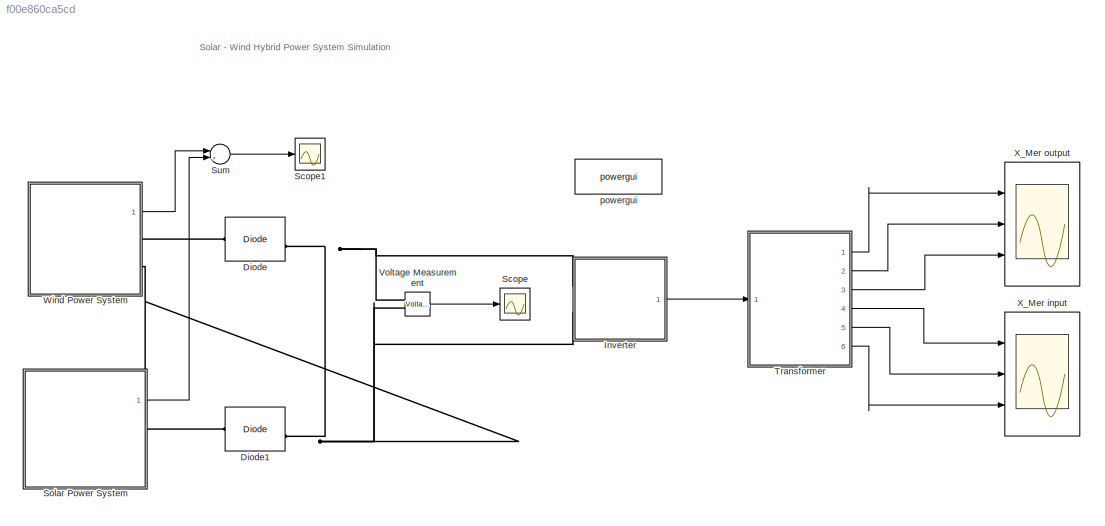
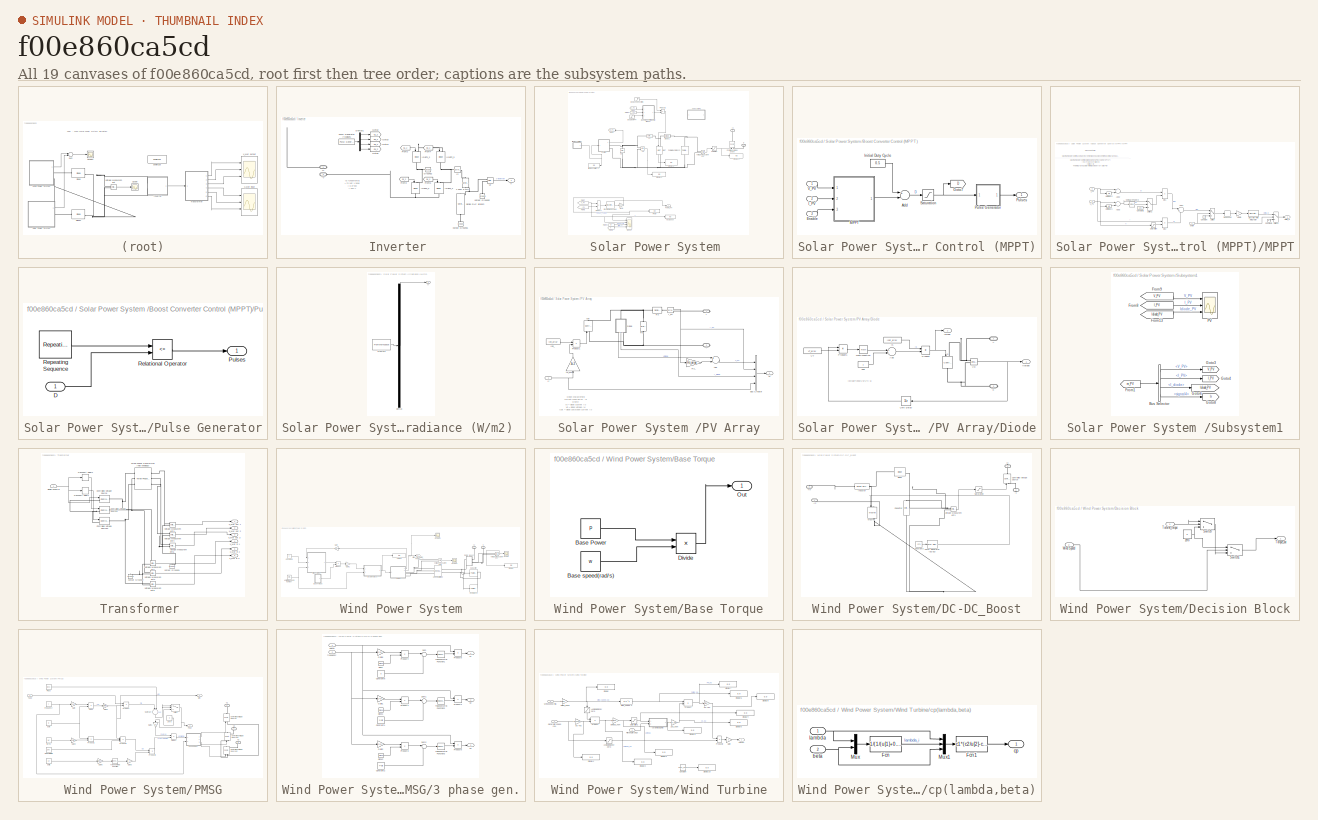
[diagram: thumbnail index - all 19 canvases of the model, root first then tree order]
MODEL slx_f00e860ca5cd
KIND model
CONFIG AbsTol = auto
CONFIG EnableMultiTasking = on
CONFIG FixedStep = auto
CONFIG MaxStep = 0.001
CONFIG MinStep = auto
CONFIG RelTol = 1e-3
CONFIG SampleTimeConstraint = Unconstrained
CONFIG Solver = ode45
CONFIG SolverName = ode45
CONFIG StartTime = 0.0
CONFIG StopTime = 3
BLOCK [Reference] Diode  REF=powerlib/Power
Electronics/Diode
  Ports = [0, 1, 0, 0, 0, 1, 1]
  SourceBlock = powerlib/Power\nElectronics/Diode
  SourceType = Diode
BLOCK [Reference] Diode1  REF=powerlib/Power
Electronics/Diode
  Ports = [0, 1, 0, 0, 0, 1, 1]
  SourceBlock = powerlib/Power\nElectronics/Diode
  SourceType = Diode
BLOCK [SubSystem] Inverter 
  Ports = [0, 1, 0, 0, 0, 2]
  RequestExecContextInheritance = off
  Variant = off
BLOCK [PMIOPort] Inverter /+V
  Port = 1
  Side = Left
BLOCK [PMIOPort] Inverter /-V 
  Port = 2
  Side = Left
BLOCK [Reference] Inverter /1 ohm 5 mH   REF=powerlib/Elements/Series RLC Branch
  AttributesFormatString = \n
  Ports = [0, 0, 0, 0, 0, 1, 1]
  SourceBlock = powerlib/Elements/Series RLC Branch
  SourceType = Series RLC Branch
BLOCK [Demux] Inverter /Demux1
  DisplayOption = bar
  Ports = [1, 4]
BLOCK [From] Inverter /From2
  CloseFcn = tagdialog Close
  GotoTag = G1_2
BLOCK [From] Inverter /From3
  CloseFcn = tagdialog Close
  GotoTag = G2_2
BLOCK [From] Inverter /From4
  CloseFcn = tagdialog Close
  GotoTag = G3_2
BLOCK [From] Inverter /From5
  CloseFcn = tagdialog Close
  GotoTag = G4_2
BLOCK [Goto] Inverter /Goto2
  GotoTag = G1_2
BLOCK [Goto] Inverter /Goto3
  GotoTag = G2_2
BLOCK [Goto] Inverter /Goto4
  GotoTag = G3_2
BLOCK [Goto] Inverter /Goto5
  GotoTag = G4_2
BLOCK [Reference] Inverter /Ground2  REF=powerlib/Elements/Ground
  AttributesFormatString = \n
  Ports = [0, 0, 0, 0, 0, 1]
  SourceBlock = powerlib/Elements/Ground
  SourceType = Ground
BLOCK [Reference] Inverter /I2  REF=powerlib/Measurements/Current Measurement
  AttributesFormatString = \n
  Ports = [0, 1, 0, 0, 0, 1, 1]
  SourceBlock = powerlib/Measurements/Current Measurement
  SourceType = Current Measurement
  Tag = PoWeRsYsTeMmEaSuReMeNt
BLOCK [Reference] Inverter /IGBT1_2  REF=powerlib/Power
Electronics/IGBT//Diode
  Ports = [1, 0, 0, 0, 0, 1, 1]
  SourceBlock = powerlib/Power\nElectronics/IGBT//Diode
  SourceType = IGBT/Diode
BLOCK [Reference] Inverter /IGBT2_2  REF=powerlib/Power
Electronics/IGBT//Diode
  Ports = [1, 0, 0, 0, 0, 1, 1]
  SourceBlock = powerlib/Power\nElectronics/IGBT//Diode
  SourceType = IGBT/Diode
BLOCK [Reference] Inverter /IGBT2_3  REF=powerlib/Power
Electronics/IGBT//Diode
  Ports = [1, 0, 0, 0, 0, 1, 1]
  SourceBlock = powerlib/Power\nElectronics/IGBT//Diode
  SourceType = IGBT/Diode
BLOCK [Reference] Inverter /IGBT2_4  REF=powerlib/Power
Electronics/IGBT//Diode
  Ports = [1, 0, 0, 0, 0, 1, 1]
  SourceBlock = powerlib/Power\nElectronics/IGBT//Diode
  SourceType = IGBT/Diode
BLOCK [Reference] Inverter /PWM Generator (4-pulses)  REF=powerlib_meascontrol/Pulse & Signal
Generators/PWM Generator
(2-Level)
  Ports = [0, 1]
  SourceBlock = powerlib_meascontrol/Pulse & Signal\nGenerators/PWM Generator\n(2-Level)
  SourceType = PWM Generator (2-Level)
BLOCK [Reference] Inverter /Series RLC Branch  REF=powerlib/Elements/Series RLC Branch
  Ports = [0, 0, 0, 0, 0, 1, 1]
  SourceBlock = powerlib/Elements/Series RLC Branch
  SourceType = Series RLC Branch
BLOCK [Outport] Inverter /V
  IconDisplay = Port number
BLOCK [Reference] Inverter /V2  REF=powerlib/Measurements/Voltage Measurement
  AttributesFormatString = \n
  Ports = [0, 1, 0, 0, 0, 2]
  SourceBlock = powerlib/Measurements/Voltage Measurement
  SourceType = Voltage Measurement
  Tag = PoWeRsYsTeMmEaSuReMeNt
BLOCK [Reference] Inverter /output Ground1  REF=powerlib/Elements/Ground
  AttributesFormatString = \n
  Ports = [0, 0, 0, 0, 0, 1]
  SourceBlock = powerlib/Elements/Ground
  SourceType = Ground
BLOCK [Reference] Inverter /output Ground2  REF=powerlib/Elements/Ground
  AttributesFormatString = \n
  Ports = [0, 0, 0, 0, 0, 1]
  SourceBlock = powerlib/Elements/Ground
  SourceType = Ground
BLOCK [Scope] Scope
  NumInputPorts = 1
  Ports = [1]
  ScopeSpecificationString = Simulink.scopes.TimeScopeBlockCfg('CurrentConfiguration', extmgr.ConfigurationSet(extmgr.Configuration('Core','General UI',true),extmgr.Configuration('Core','Source UI',true),extmgr.Configuration('Sources','WiredSimulink',true,'DataLoggingVariableName','ScopeData3'),extmgr.Configuration('Visuals','Time Domain',true,'SerializedDisplays',{struct('MinYLimReal','-46.37688','MaxYLimReal','417.3929','YL...<+1410ch>
BLOCK [Scope] Scope1
  NumInputPorts = 1
  Ports = [1]
  ScopeSpecificationString = Simulink.scopes.TimeScopeBlockCfg('CurrentConfiguration', extmgr.ConfigurationSet(extmgr.Configuration('Core','General UI',true),extmgr.Configuration('Core','Source UI',true),extmgr.Configuration('Sources','WiredSimulink',true,'DataLoggingVariableName','ScopeData6'),extmgr.Configuration('Visuals','Time Domain',true,'SerializedDisplays',{struct('MinYLimReal','4550.27194','MaxYLimReal','10330.8603',...<+1436ch>
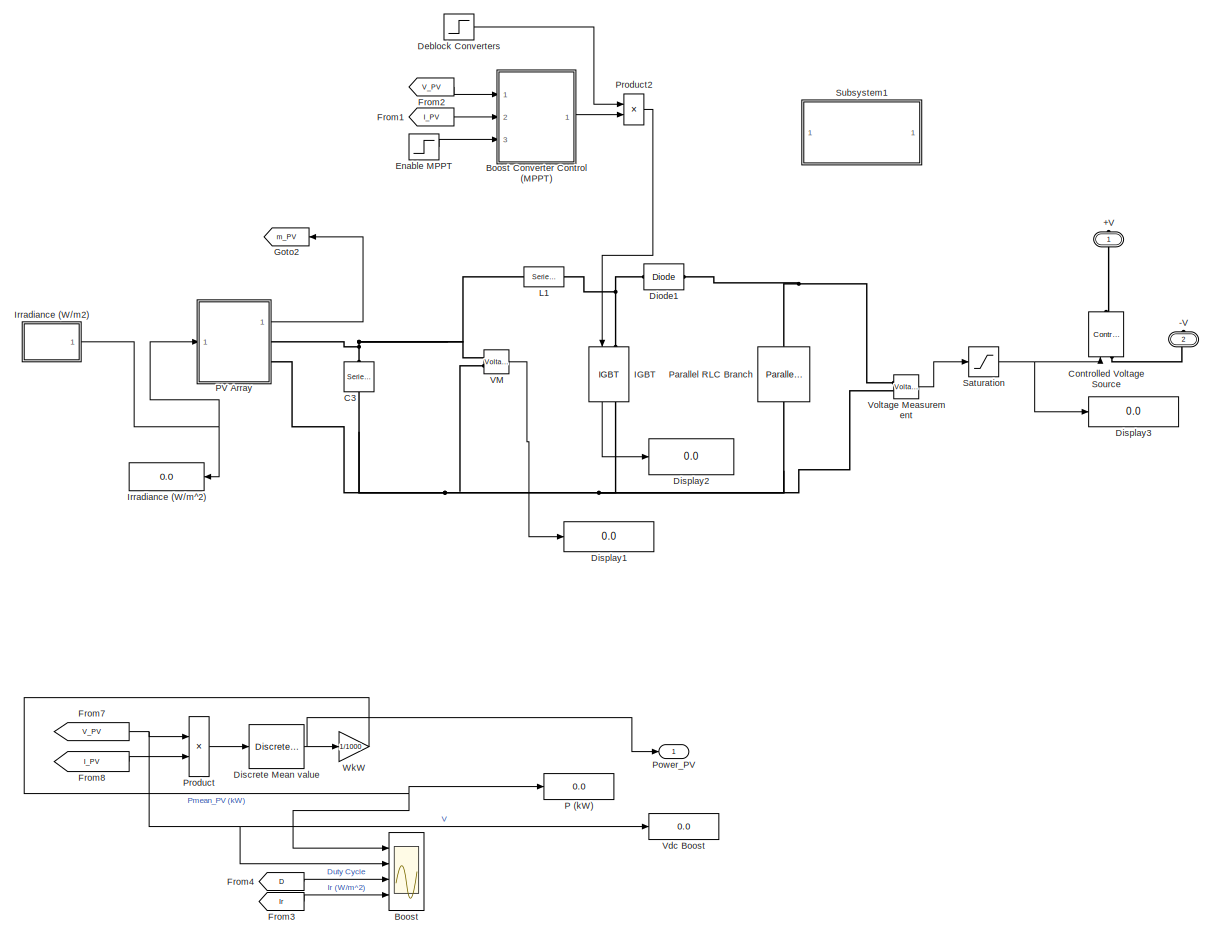
[diagram: Solar Power System  - part 1/1, most of the canvas]
BLOCK [SubSystem] Solar Power System 
  Ports = [0, 1, 0, 0, 0, 0, 2]
  RequestExecContextInheritance = off
  Variant = off
BLOCK [PMIOPort] Solar Power System /+V
  Port = 1
  Side = Right
BLOCK [PMIOPort] Solar Power System /-V
  Port = 2
  Side = Right
BLOCK [Scope] Solar Power System /Boost
  NumInputPorts = 4
  Ports = [4]
  ScopeSpecificationString = Simulink.scopes.TimeScopeBlockCfg('CurrentConfiguration', extmgr.ConfigurationSet(extmgr.Configuration('Core','General UI',true),extmgr.Configuration('Core','Source UI',true),extmgr.Configuration('Sources','WiredSimulink',true,'DataLogging',true,'DataLoggingVariableName','ScopeData_Boost','DataLoggingSaveFormat','StructureWithTime','DataLoggingDecimation','100','DataLoggingDecimateData',true,'Samp...<+3813ch>
BLOCK [SubSystem] Solar Power System /Boost Converter Control (MPPT)
  Ports = [3, 1]
  RequestExecContextInheritance = off
  Variant = off
BLOCK [Sum] Solar Power System /Boost Converter Control (MPPT)/Add
  InputSameDT = off
  Inputs = +-
  OutDataTypeStr = Inherit: Inherit via internal rule
  Ports = [2, 1]
  SaturateOnIntegerOverflow = off
BLOCK [Inport] Solar Power System /Boost Converter Control (MPPT)/Enable
  IconDisplay = Port number
  Port = 3
BLOCK [Goto] Solar Power System /Boost Converter Control (MPPT)/Goto7
  GotoTag = D
  TagVisibility = global
BLOCK [Inport] Solar Power System /Boost Converter Control (MPPT)/I_PV
  IconDisplay = Port number
  Port = 2
BLOCK [Constant] Solar Power System /Boost Converter Control (MPPT)/Initial Duty Cycle
  Value = 0.5
BLOCK [SubSystem] Solar Power System /Boost Converter Control (MPPT)/MPPT
  Ports = [3, 1]
  RequestExecContextInheritance = off
  Variant = off
BLOCK [Sum] Solar Power System /Boost Converter Control (MPPT)/MPPT/Add1
  IconShape = round
  InputSameDT = off
  Inputs = |++
  OutDataTypeStr = Inherit: Inherit via internal rule
  Ports = [2, 1]
  SaturateOnIntegerOverflow = off
BLOCK [Sum] Solar Power System /Boost Converter Control (MPPT)/MPPT/Add2
  InputSameDT = off
  Inputs = +-
  OutDataTypeStr = Inherit: Inherit via internal rule
  Ports = [2, 1]
  SaturateOnIntegerOverflow = off
BLOCK [Sum] Solar Power System /Boost Converter Control (MPPT)/MPPT/Add3
  InputSameDT = off
  Inputs = +-
  OutDataTypeStr = Inherit: Inherit via internal rule
  Ports = [2, 1]
  SaturateOnIntegerOverflow = off
BLOCK [Reference] Solar Power System /Boost Converter Control (MPPT)/MPPT/Compare To Zero  REF=simulink/Logic and Bit
Operations/Compare
To Zero
  Ports = [1, 1]
  SourceBlock = simulink/Logic and Bit\nOperations/Compare\nTo Zero
  SourceType = Compare To Zero
BLOCK [Constant] Solar Power System /Boost Converter Control (MPPT)/MPPT/Constant
  Value = 0
BLOCK [Constant] Solar Power System /Boost Converter Control (MPPT)/MPPT/Constant1
  Value = 0
BLOCK [Constant] Solar Power System /Boost Converter Control (MPPT)/MPPT/Constant2
  Value = 1e-6
BLOCK [DeadZone] Solar Power System /Boost Converter Control (MPPT)/MPPT/Dead Zone
  LowerValue = -0.02
  UpperValue = +0.02
BLOCK [Outport] Solar Power System /Boost Converter Control (MPPT)/MPPT/Delta_D
  IconDisplay = Port number
BLOCK [DiscreteIntegrator] Solar Power System /Boost Converter Control (MPPT)/MPPT/Discrete-Time Integrator
  ICPrevOutput = DiscIntNeverNeededParam
  ICPrevScaledInput = DiscIntNeverNeededParam
  LimitOutput = on
  LowerSaturationLimit = -1
  Ports = [1, 1]
  SampleTime = Ts_Control
  UpperSaturationLimit = 1
  gainval = 1
BLOCK [Inport] Solar Power System /Boost Converter Control (MPPT)/MPPT/I_PV
  IconDisplay = Port number
  Port = 2
BLOCK [Gain] Solar Power System /Boost Converter Control (MPPT)/MPPT/Ki Gain
  Gain = 7
  OutDataTypeStr = Inherit: Inherit via internal rule
  ParamDataTypeStr = Inherit: Inherit via internal rule
  SaturateOnIntegerOverflow = off
BLOCK [Saturate] Solar Power System /Boost Converter Control (MPPT)/MPPT/Saturation
  InputPortMap = u0
  LowerLimit = eps
  Ports = [1, 1]
  UpperLimit = inf
BLOCK [Switch] Solar Power System /Boost Converter Control (MPPT)/MPPT/Switch
  InputSameDT = off
  SaturateOnIntegerOverflow = off
  Threshold = 0.5
BLOCK [Switch] Solar Power System /Boost Converter Control (MPPT)/MPPT/Switch1
  InputSameDT = off
  SaturateOnIntegerOverflow = off
  Threshold = 0.5
BLOCK [Switch] Solar Power System /Boost Converter Control (MPPT)/MPPT/Switch2
  Criteria = u2 ~= 0
  InputSameDT = off
  SaturateOnIntegerOverflow = off
BLOCK [UnitDelay] Solar Power System /Boost Converter Control (MPPT)/MPPT/Unit Delay1
  InputProcessing = Elements as channels (sample based)
  SampleTime = Ts_Control
BLOCK [UnitDelay] Solar Power System /Boost Converter Control (MPPT)/MPPT/Unit Delay2
  InputProcessing = Elements as channels (sample based)
  SampleTime = Ts_Control
BLOCK [Inport] Solar Power System /Boost Converter Control (MPPT)/MPPT/V_PV
  IconDisplay = Port number
BLOCK [Product] Solar Power System /Boost Converter Control (MPPT)/MPPT/div1
  InputSameDT = off
  Inputs = */
  OutDataTypeStr = Inherit: Inherit via internal rule
  Ports = [2, 1]
  SaturateOnIntegerOverflow = off
BLOCK [Product] Solar Power System /Boost Converter Control (MPPT)/MPPT/div2
  InputSameDT = off
  Inputs = */
  OutDataTypeStr = Inherit: Inherit via internal rule
  Ports = [2, 1]
  SaturateOnIntegerOverflow = off
BLOCK [Inport] Solar Power System /Boost Converter Control (MPPT)/MPPT/on//off
  IconDisplay = Port number
  Port = 3
BLOCK [SubSystem] Solar Power System /Boost Converter Control (MPPT)/Pulse Generator
  Ports = [1, 1]
  RequestExecContextInheritance = off
  Variant = off
BLOCK [Inport] Solar Power System /Boost Converter Control (MPPT)/Pulse Generator/D
  IconDisplay = Port number
BLOCK [Outport] Solar Power System /Boost Converter Control (MPPT)/Pulse Generator/Pulses
  IconDisplay = Port number
BLOCK [RelationalOperator] Solar Power System /Boost Converter Control (MPPT)/Pulse Generator/Relational Operator
  InputSameDT = off
  Operator = <=
  OutDataTypeStr = boolean
  Ports = [2, 1]
BLOCK [Reference] Solar Power System /Boost Converter Control (MPPT)/Pulse Generator/Repeating Sequence  REF=simulink/Sources/Repeating
Sequence
  Ports = [0, 1]
  SourceBlock = simulink/Sources/Repeating\nSequence
  SourceType = Repeating table
BLOCK [Outport] Solar Power System /Boost Converter Control (MPPT)/Pulses
  IconDisplay = Port number
BLOCK [Saturate] Solar Power System /Boost Converter Control (MPPT)/Saturation
  InputPortMap = u0
  LowerLimit = 0
  Ports = [1, 1]
  UpperLimit = 1
BLOCK [Inport] Solar Power System /Boost Converter Control (MPPT)/V_PV
  IconDisplay = Port number
BLOCK [Reference] Solar Power System /C3  REF=powerlib/Elements/Series RLC Branch
  AttributesFormatString = \n
  Ports = [0, 0, 0, 0, 0, 1, 1]
  SourceBlock = powerlib/Elements/Series RLC Branch
  SourceType = Series RLC Branch
BLOCK [Reference] Solar Power System /Controlled Voltage Source  REF=powerlib/Electrical
Sources/Controlled Voltage Source
  Ports = [1, 0, 0, 0, 0, 1, 1]
  SourceBlock = powerlib/Electrical\nSources/Controlled Voltage Source
  SourceType = Controlled Voltage Source
BLOCK [Step] Solar Power System /Deblock Converters
  SampleTime = 0
  Time = 0.05
BLOCK [Reference] Solar Power System /Diode1  REF=powerlib/Power
Electronics/Diode
  Ports = [0, 0, 0, 0, 0, 1, 1]
  SourceBlock = powerlib/Power\nElectronics/Diode
  SourceType = Diode
BLOCK [Reference] Solar Power System /Discrete Mean value  REF=powerlib_extras/Discrete
Measurements/Discrete 
Mean value
  Ports = [1, 1]
  SourceBlock = powerlib_extras/Discrete\nMeasurements/Discrete \nMean value
  SourceType = Discrete Mean value
BLOCK [Display] Solar Power System /Display1
  Decimation = 1
  Ports = [1]
BLOCK [Display] Solar Power System /Display2
  Decimation = 1
  Ports = [1]
BLOCK [Display] Solar Power System /Display3
  Decimation = 1
  Ports = [1]
BLOCK [Step] Solar Power System /Enable MPPT
  SampleTime = 0
  Time = 0.4
BLOCK [From] Solar Power System /From1
  CloseFcn = tagdialog Close
  GotoTag = I_PV
  TagVisibility = global
BLOCK [From] Solar Power System /From2
  CloseFcn = tagdialog Close
  GotoTag = V_PV
  TagVisibility = global
BLOCK [From] Solar Power System /From3
  CloseFcn = tagdialog Close
  GotoTag = Ir
  TagVisibility = global
BLOCK [From] Solar Power System /From4
  CloseFcn = tagdialog Close
  GotoTag = D
  TagVisibility = global
BLOCK [From] Solar Power System /From7
  GotoTag = V_PV
  TagVisibility = global
BLOCK [From] Solar Power System /From8
  GotoTag = I_PV
  TagVisibility = global
BLOCK [Goto] Solar Power System /Goto2
  GotoTag = m_PV
  TagVisibility = global
BLOCK [Reference] Solar Power System /IGBT  REF=powerlib/Power
Electronics/IGBT
  Ports = [1, 1, 0, 0, 0, 1, 1]
  SourceBlock = powerlib/Power\nElectronics/IGBT
  SourceType = IGBT
BLOCK [SubSystem] Solar Power System /Irradiance (W//m2) 
  ClipboardFcn = sigbuilder_block('clipboard');
  CloseFcn = sigbuilder_block('close');
  ContinueFcn = sigbuilder_block('continue')
  CopyFcn = sigbuilder_block('copy');
  DeleteFcn = sigbuilder_block('delete');
  LoadFcn = sigbuilder_block('load');
  MaskHideContents = on
  ModelCloseFcn = sigbuilder_block('modelClose');
  NameChangeFcn = sigbuilder_block('namechange');
  OpenFcn = sigbuilder_block('open',[9 39 954 473.25 ]);
  PauseFcn = sigbuilder_block('pause')
  Ports = [0, 1]
  PreSaveFcn = sigbuilder_block('preSave');
  RequestExecContextInheritance = off
  StartFcn = sigbuilder_block('start');
  StopFcn = sigbuilder_block('stop');
  Tag = STV Subsys
  Variant = off
BLOCK [Demux] Solar Power System /Irradiance (W//m2) /Demux
  Outputs = 1
  Ports = [1, 1]
  Tag = STV Demux
BLOCK [FromWorkspace] Solar Power System /Irradiance (W//m2) /FromWs
  SampleTime = 0
  Tag = STV FromWs
  VariableName = tuvar
  ZeroCross = on
BLOCK [Outport] Solar Power System /Irradiance (W//m2) /Ir
  IconDisplay = Port number
  Tag = STV Outport
BLOCK [Display] Solar Power System /Irradiance (W//m^2)
  Decimation = 1000
  Format = bank
  Ports = [1]
BLOCK [Reference] Solar Power System /L1  REF=powerlib/Elements/Series RLC Branch
  Ports = [0, 0, 0, 0, 0, 1, 1]
  SourceBlock = powerlib/Elements/Series RLC Branch
  SourceType = Series RLC Branch
BLOCK [Display] Solar Power System /P (kW) 
  Decimation = 2000
  Format = bank
  Ports = [1]
BLOCK [SubSystem] Solar Power System /PV Array
  Ports = [1, 1, 0, 0, 0, 0, 2]
  RequestExecContextInheritance = off
  Variant = off
BLOCK [PMIOPort] Solar Power System /PV Array/+
  Port = 1
  Side = Right
BLOCK [PMIOPort] Solar Power System /PV Array/-
  Port = 2
  Side = Right
BLOCK [Sum] Solar Power System /PV Array/Add
  InputSameDT = off
  Inputs = +-
  OutDataTypeStr = Inherit: Inherit via internal rule
  Ports = [2, 1]
  SaturateOnIntegerOverflow = off
BLOCK [BusCreator] Solar Power System /PV Array/Bus Creator
  DisplayOption = bar
  InheritFromInputs = on
  Inputs = 4
  Ports = [4, 1]
BLOCK [SubSystem] Solar Power System /PV Array/Diode
  Ports = [0, 2, 0, 0, 0, 1, 1]
  RequestExecContextInheritance = off
  Variant = off
BLOCK [PMIOPort] Solar Power System /PV Array/Diode/A
  Port = 1
  Side = Left
BLOCK [Sum] Solar Power System /PV Array/Diode/Add
  InputSameDT = off
  Inputs = +-
  OutDataTypeStr = Inherit: Inherit via internal rule
  Ports = [2, 1]
  SaturateOnIntegerOverflow = off
BLOCK [Reference] Solar Power System /PV Array/Diode/Id  REF=powerlib/Electrical
Sources/Controlled Current Source
  Ports = [1, 0, 0, 0, 0, 1, 1]
  SourceBlock = powerlib/Electrical\nSources/Controlled Current Source
  SourceType = Controlled Current Source
BLOCK [Outport] Solar Power System /PV Array/Diode/Idiode
  IconDisplay = Port number
  Port = 2
BLOCK [Constant] Solar Power System /PV Array/Diode/Is
  Value = Isat_array
BLOCK [PMIOPort] Solar Power System /PV Array/Diode/K
  Port = 2
  Side = Right
BLOCK [Math] Solar Power System /PV Array/Diode/Math Function
  Ports = [1, 1]
BLOCK [Product] Solar Power System /PV Array/Diode/Product
  InputSameDT = off
  OutDataTypeStr = Inherit: Inherit via internal rule
  Ports = [2, 1]
  SaturateOnIntegerOverflow = off
BLOCK [Product] Solar Power System /PV Array/Diode/Product1
  InputSameDT = off
  Inputs = */
  OutDataTypeStr = Inherit: Inherit via internal rule
  Ports = [2, 1]
  SaturateOnIntegerOverflow = off
BLOCK [UnitDelay] Solar Power System /PV Array/Diode/Unit Delay
  InputProcessing = Elements as channels (sample based)
  SampleTime = Ts
BLOCK [Constant] Solar Power System /PV Array/Diode/VT
  Value = VT_array
BLOCK [Reference] Solar Power System /PV Array/Diode/Vd  REF=powerlib/Measurements/Voltage Measurement
  Ports = [0, 1, 0, 0, 0, 2]
  SourceBlock = powerlib/Measurements/Voltage Measurement
  SourceType = Voltage Measurement
BLOCK [Outport] Solar Power System /PV Array/Diode/Vdiode
  IconDisplay = Port number
BLOCK [Constant] Solar Power System /PV Array/Diode/one
BLOCK [Reference] Solar Power System /PV Array/I_PV  REF=powerlib/Measurements/Current Measurement
  Ports = [0, 1, 0, 0, 0, 1, 1]
  SourceBlock = powerlib/Measurements/Current Measurement
  SourceType = Current Measurement
BLOCK [Reference] Solar Power System /PV Array/Iph  REF=powerlib/Electrical
Sources/Controlled Current Source
  Ports = [1, 0, 0, 0, 0, 1, 1]
  SourceBlock = powerlib/Electrical\nSources/Controlled Current Source
  SourceType = Controlled Current Source
BLOCK [Constant] Solar Power System /PV Array/Iph_
  Value = Iph_array
BLOCK [Inport] Solar Power System /PV Array/Ir
  IconDisplay = Port number
BLOCK [Product] Solar Power System /PV Array/Product1
  InputSameDT = off
  Inputs = **
  OutDataTypeStr = Inherit: Inherit via internal rule
  Ports = [2, 1]
  SaturateOnIntegerOverflow = off
BLOCK [Reference] Solar Power System /PV Array/Rp  REF=powerlib/Elements/Series RLC Branch
  Ports = [0, 0, 0, 0, 0, 1, 1]
  SourceBlock = powerlib/Elements/Series RLC Branch
  SourceType = Series RLC Branch
BLOCK [Reference] Solar Power System /PV Array/Rs  REF=powerlib/Elements/Series RLC Branch
  Ports = [0, 0, 0, 0, 0, 1, 1]
  SourceBlock = powerlib/Elements/Series RLC Branch
  SourceType = Series RLC Branch
BLOCK [Gain] Solar Power System /PV Array/Rs_
  Gain = Rs_array
  OutDataTypeStr = Inherit: Inherit via internal rule
  ParamDataTypeStr = Inherit: Inherit via internal rule
  SaturateOnIntegerOverflow = off
BLOCK [Outport] Solar Power System /PV Array/m
  IconDisplay = Port number
BLOCK [Gain] Solar Power System /PV Array/t0_kW
  Gain = 1e-3
  OutDataTypeStr = Inherit: Inherit via internal rule
  ParamDataTypeStr = Inherit: Inherit via internal rule
  SaturateOnIntegerOverflow = off
BLOCK [Reference] Solar Power System /Parallel RLC Branch  REF=powerlib/Elements/Parallel RLC Branch
  AttributesFormatString = \n
  Ports = [0, 0, 0, 0, 0, 1, 1]
  SourceBlock = powerlib/Elements/Parallel RLC Branch
  SourceType = Parallel RLC Branch
BLOCK [Outport] Solar Power System /Power_PV
  IconDisplay = Port number
BLOCK [Product] Solar Power System /Product
  InputSameDT = off
  OutDataTypeStr = Inherit: Inherit via internal rule
  Ports = [2, 1]
  SaturateOnIntegerOverflow = off
BLOCK [Product] Solar Power System /Product2
  InputSameDT = off
  OutDataTypeStr = Inherit: Inherit via internal rule
  Ports = [2, 1]
  SaturateOnIntegerOverflow = off
BLOCK [Saturate] Solar Power System /Saturation
  InputPortMap = u0
  LowerLimit = 0
  Ports = [1, 1]
  UpperLimit = 48
BLOCK [SubSystem] Solar Power System /Subsystem1
  Ports = []
  RequestExecContextInheritance = off
  Variant = off
BLOCK [BusSelector] Solar Power System /Subsystem1/Bus Selector
  OutputSignals = V_PV,I_PV,I_diode,signal4
  Ports = [1, 4]
BLOCK [From] Solar Power System /Subsystem1/From1
  GotoTag = m_PV
  TagVisibility = global
BLOCK [From] Solar Power System /Subsystem1/From13
  GotoTag = Idiode_PV
  TagVisibility = global
BLOCK [From] Solar Power System /Subsystem1/From8
  GotoTag = I_PV
  TagVisibility = global
BLOCK [From] Solar Power System /Subsystem1/From9
  GotoTag = V_PV
  TagVisibility = global
BLOCK [Goto] Solar Power System /Subsystem1/Goto3
  GotoTag = V_PV
  TagVisibility = global
BLOCK [Goto] Solar Power System /Subsystem1/Goto4
  GotoTag = I_PV
  TagVisibility = global
BLOCK [Goto] Solar Power System /Subsystem1/Goto6
  GotoTag = Idiode_PV
  TagVisibility = global
BLOCK [Goto] Solar Power System /Subsystem1/Goto8
  GotoTag = Ir
  TagVisibility = global
BLOCK [Scope] Solar Power System /Subsystem1/PV
  NumInputPorts = 3
  Ports = [3]
  ScopeSpecificationString = C++SS(StrPVP('Location','[599, 178, 1169, 654]'),StrPVP('Open','off'),StrPVP('ZoomMode','yonly'),MxPVP('AxesTitles',24,'struct(''axes1'',''%<SignalLabel>'',''axes2'',''%<SignalLabel>'',''axes3'',''%<SignalLabel>'')'),MxPVP('ScopeGraphics',28,'struct(''FigureColor'',''[0.5 0.5 0.5]'',''AxesColor'',''[0 0 0]'',''AxesTickColor'',''[1 1 1]'',''LineColors'',''[1 1 0;1 0 1;0 1 1;1 0 0;0 1 0;0 0 1]'',''L...<+409ch>
BLOCK [Reference] Solar Power System /VM  REF=powerlib/Measurements/Voltage Measurement
  Ports = [0, 1, 0, 0, 0, 2]
  SourceBlock = powerlib/Measurements/Voltage Measurement
  SourceType = Voltage Measurement
BLOCK [Display] Solar Power System /Vdc Boost
  Decimation = 2000
  Format = bank
  Ports = [1]
BLOCK [Reference] Solar Power System /Voltage Measurement  REF=powerlib/Measurements/Voltage Measurement
  Ports = [0, 1, 0, 0, 0, 2]
  SourceBlock = powerlib/Measurements/Voltage Measurement
  SourceType = Voltage Measurement
  UserDataPersistent = on
BLOCK [Gain] Solar Power System /WkW
  Gain = 1/1000
  OutDataTypeStr = Inherit: Inherit via internal rule
  ParamDataTypeStr = Inherit: Inherit via internal rule
  SaturateOnIntegerOverflow = off
BLOCK [Sum] Sum
  IconShape = round
  InputSameDT = off
  Inputs = |++
  OutDataTypeStr = Inherit: Inherit via internal rule
  Ports = [2, 1]
  SaturateOnIntegerOverflow = off
BLOCK [SubSystem] Transformer 
  Ports = [1, 6]
  RequestExecContextInheritance = off
  Variant = off
BLOCK [Reference] Transformer /Controlled Voltage Source  REF=powerlib/Electrical
Sources/Controlled Voltage Source
  Ports = [1, 0, 0, 0, 0, 1, 1]
  SourceBlock = powerlib/Electrical\nSources/Controlled Voltage Source
  SourceType = Controlled Voltage Source
BLOCK [Reference] Transformer /Controlled Voltage Source1  REF=powerlib/Electrical
Sources/Controlled Voltage Source
  Ports = [1, 0, 0, 0, 0, 1, 1]
  SourceBlock = powerlib/Electrical\nSources/Controlled Voltage Source
  SourceType = Controlled Voltage Source
BLOCK [Reference] Transformer /Controlled Voltage Source2  REF=powerlib/Electrical
Sources/Controlled Voltage Source
  Ports = [1, 0, 0, 0, 0, 1, 1]
  SourceBlock = powerlib/Electrical\nSources/Controlled Voltage Source
  SourceType = Controlled Voltage Source
BLOCK [Inport] Transformer /Single phase in 
  IconDisplay = Port number
BLOCK [Reference] Transformer /Three-Phase Transformer (Two Windings)  REF=powerlib/Elements/Three-Phase
Transformer
(Two Windings)
  Ports = [0, 0, 0, 0, 0, 3, 3]
  SourceBlock = powerlib/Elements/Three-Phase\nTransformer\n(Two Windings)
  SourceType = Three-Phase Transformer (Two Windings)
BLOCK [TransportDelay] Transformer /Transport Delay1
  BufferSize = 10240
  DelayTime = 0.013333
  Ports = [1, 1]
BLOCK [TransportDelay] Transformer /Transport Delay2
  BufferSize = 10240
  DelayTime = 6.6667e-3
  Ports = [1, 1]
BLOCK [Reference] Transformer /Voltage Measurement1  REF=powerlib/Measurements/Voltage Measurement
  Ports = [0, 1, 0, 0, 0, 2]
  SourceBlock = powerlib/Measurements/Voltage Measurement
  SourceType = Voltage Measurement
  UserDataPersistent = on
BLOCK [Reference] Transformer /Voltage Measurement2  REF=powerlib/Measurements/Voltage Measurement
  Ports = [0, 1, 0, 0, 0, 2]
  SourceBlock = powerlib/Measurements/Voltage Measurement
  SourceType = Voltage Measurement
  UserDataPersistent = on
BLOCK [Reference] Transformer /Voltage Measurement3  REF=powerlib/Measurements/Voltage Measurement
  Ports = [0, 1, 0, 0, 0, 2]
  SourceBlock = powerlib/Measurements/Voltage Measurement
  SourceType = Voltage Measurement
  UserDataPersistent = on
BLOCK [Reference] Transformer /Voltage Measurement4  REF=powerlib/Measurements/Voltage Measurement
  Ports = [0, 1, 0, 0, 0, 2]
  SourceBlock = powerlib/Measurements/Voltage Measurement
  SourceType = Voltage Measurement
  UserDataPersistent = on
BLOCK [Reference] Transformer /Voltage Measurement5  REF=powerlib/Measurements/Voltage Measurement
  Ports = [0, 1, 0, 0, 0, 2]
  SourceBlock = powerlib/Measurements/Voltage Measurement
  SourceType = Voltage Measurement
  UserDataPersistent = on
BLOCK [Reference] Transformer /Voltage Measurement6  REF=powerlib/Measurements/Voltage Measurement
  Ports = [0, 1, 0, 0, 0, 2]
  SourceBlock = powerlib/Measurements/Voltage Measurement
  SourceType = Voltage Measurement
  UserDataPersistent = on
BLOCK [Outport] Transformer /X_Mer in 1
  IconDisplay = Port number
  Port = 4
BLOCK [Outport] Transformer /X_Mer in 2
  IconDisplay = Port number
  Port = 5
BLOCK [Outport] Transformer /X_Mer in 3 
  IconDisplay = Port number
  Port = 6
BLOCK [Outport] Transformer /X_Mer out 1
  IconDisplay = Port number
BLOCK [Outport] Transformer /X_Mer out 2
  IconDisplay = Port number
  Port = 2
BLOCK [Outport] Transformer /X_Mer out 3
  IconDisplay = Port number
  Port = 3
BLOCK [Reference] Transformer /output Ground1  REF=powerlib/Elements/Ground
  AttributesFormatString = \n
  Ports = [0, 0, 0, 0, 0, 1]
  SourceBlock = powerlib/Elements/Ground
  SourceType = Ground
BLOCK [Reference] Transformer /output Ground2  REF=powerlib/Elements/Ground
  AttributesFormatString = \n
  Ports = [0, 0, 0, 0, 0, 1]
  SourceBlock = powerlib/Elements/Ground
  SourceType = Ground
BLOCK [Reference] Voltage Measurement  REF=powerlib/Measurements/Voltage Measurement
  Ports = [0, 1, 0, 0, 0, 2]
  SourceBlock = powerlib/Measurements/Voltage Measurement
  SourceType = Voltage Measurement
  UserDataPersistent = on
BLOCK [SubSystem] Wind Power System
  Ports = [0, 1, 0, 0, 0, 0, 2]
  RequestExecContextInheritance = off
  Variant = off
BLOCK [PMIOPort] Wind Power System/+V
  Port = 1
  Side = Right
BLOCK [PMIOPort] Wind Power System/-V
  Port = 2
  Side = Right
BLOCK [SubSystem] Wind Power System/Base Torque
  Ports = [0, 1]
  RequestExecContextInheritance = off
  Variant = off
BLOCK [Constant] Wind Power System/Base Torque/Base Power
  Value = P
BLOCK [Constant] Wind Power System/Base Torque/Base speed(rad//s)
  Value = w
BLOCK [Product] Wind Power System/Base Torque/Divide
  InputSameDT = off
  Inputs = */
  OutDataTypeStr = Inherit: Inherit via internal rule
  Ports = [2, 1]
  RndMeth = Floor
  SaturateOnIntegerOverflow = off
BLOCK [Outport] Wind Power System/Base Torque/Out
  IconDisplay = Port number
BLOCK [Reference] Wind Power System/Capacitor  REF=powerlib/Elements/Parallel RLC Branch
  AttributesFormatString = \n
  Ports = [0, 0, 0, 0, 0, 1, 1]
  SourceBlock = powerlib/Elements/Parallel RLC Branch
  SourceType = Parallel RLC Branch
BLOCK [Constant] Wind Power System/Constant1
  Value = 0
BLOCK [SubSystem] Wind Power System/DC-DC_Boost
  Ports = [0, 0, 0, 0, 0, 2, 2]
  RequestExecContextInheritance = off
  Variant = off
BLOCK [PMIOPort] Wind Power System/DC-DC_Boost/+In
  Port = 4
  Side = Left
BLOCK [PMIOPort] Wind Power System/DC-DC_Boost/+V
  Port = 1
  Side = Right
BLOCK [PMIOPort] Wind Power System/DC-DC_Boost/-In
  Port = 3
  Side = Left
BLOCK [PMIOPort] Wind Power System/DC-DC_Boost/-V
  Port = 2
  Side = Right
BLOCK [Reference] Wind Power System/DC-DC_Boost/Capacitor  REF=powerlib/Elements/Series RLC Branch
  Ports = [0, 0, 0, 0, 0, 1, 1]
  SourceBlock = powerlib/Elements/Series RLC Branch
  SourceType = Series RLC Branch
BLOCK [Constant] Wind Power System/DC-DC_Boost/Constant2
  Value = 0.73
BLOCK [Reference] Wind Power System/DC-DC_Boost/Controlled Voltage Source  REF=powerlib/Electrical
Sources/Controlled Voltage Source
  Ports = [1, 0, 0, 0, 0, 1, 1]
  SourceBlock = powerlib/Electrical\nSources/Controlled Voltage Source
  SourceType = Controlled Voltage Source
BLOCK [Reference] Wind Power System/DC-DC_Boost/Diode  REF=powerlib/Power
Electronics/Diode
  Ports = [0, 1, 0, 0, 0, 1, 1]
  SourceBlock = powerlib/Power\nElectronics/Diode
  SourceType = Diode
BLOCK [Reference] Wind Power System/DC-DC_Boost/Inductor  REF=powerlib/Elements/Series RLC Branch
  Ports = [0, 0, 0, 0, 0, 1, 1]
  SourceBlock = powerlib/Elements/Series RLC Branch
  SourceType = Series RLC Branch
BLOCK [Reference] Wind Power System/DC-DC_Boost/Mosfet  REF=powerlib/Power
Electronics/Mosfet
  Ports = [1, 1, 0, 0, 0, 1, 1]
  SourceBlock = powerlib/Power\nElectronics/Mosfet
  SourceType = Mosfet
BLOCK [Reference] Wind Power System/DC-DC_Boost/PWM Generator (DC-DC)  REF=powerlib_meascontrol/Pulse & Signal
Generators/PWM Generator
(DC-DC)
  Ports = [1, 1]
  SourceBlock = powerlib_meascontrol/Pulse & Signal\nGenerators/PWM Generator\n(DC-DC)
  SourceType = PWM Generator (DC-DC)
BLOCK [Saturate] Wind Power System/DC-DC_Boost/Saturation
  InputPortMap = u0
  LowerLimit = 0
  Ports = [1, 1]
  UpperLimit = 48
BLOCK [Reference] Wind Power System/DC-DC_Boost/Voltage Measurement1  REF=powerlib/Measurements/Voltage Measurement
  Ports = [0, 1, 0, 0, 0, 2]
  SourceBlock = powerlib/Measurements/Voltage Measurement
  SourceType = Voltage Measurement
  UserDataPersistent = on
BLOCK [SubSystem] Wind Power System/Decision Block
  Ports = [2, 1]
  RequestExecContextInheritance = off
  Variant = off
BLOCK [Switch] Wind Power System/Decision Block/Switch
  Criteria = u2 > Threshold
  InputSameDT = off
  SaturateOnIntegerOverflow = off
BLOCK [Switch] Wind Power System/Decision Block/Switch1
  Criteria = u2 > Threshold
  InputSameDT = off
  SaturateOnIntegerOverflow = off
  Threshold = 30
BLOCK [Outport] Wind Power System/Decision Block/Torque_out
  IconDisplay = Port number
BLOCK [Inport] Wind Power System/Decision Block/Turbine_torque
  IconDisplay = Port number
BLOCK [Inport] Wind Power System/Decision Block/Wind Speed
  IconDisplay = Port number
  Port = 2
BLOCK [Constant] Wind Power System/Decision Block/zero
  Value = 0
BLOCK [Display] Wind Power System/Display
  Decimation = 1
  Ports = [1]
BLOCK [Gain] Wind Power System/Gain
  Gain = 1/104.7
  OutDataTypeStr = Inherit: Inherit via internal rule
  ParamDataTypeStr = Inherit: Inherit via internal rule
  SaturateOnIntegerOverflow = off
BLOCK [Gain] Wind Power System/Gain1
  Gain = -1
  OutDataTypeStr = Inherit: Inherit via internal rule
  ParamDataTypeStr = Inherit: Inherit via internal rule
  SaturateOnIntegerOverflow = off
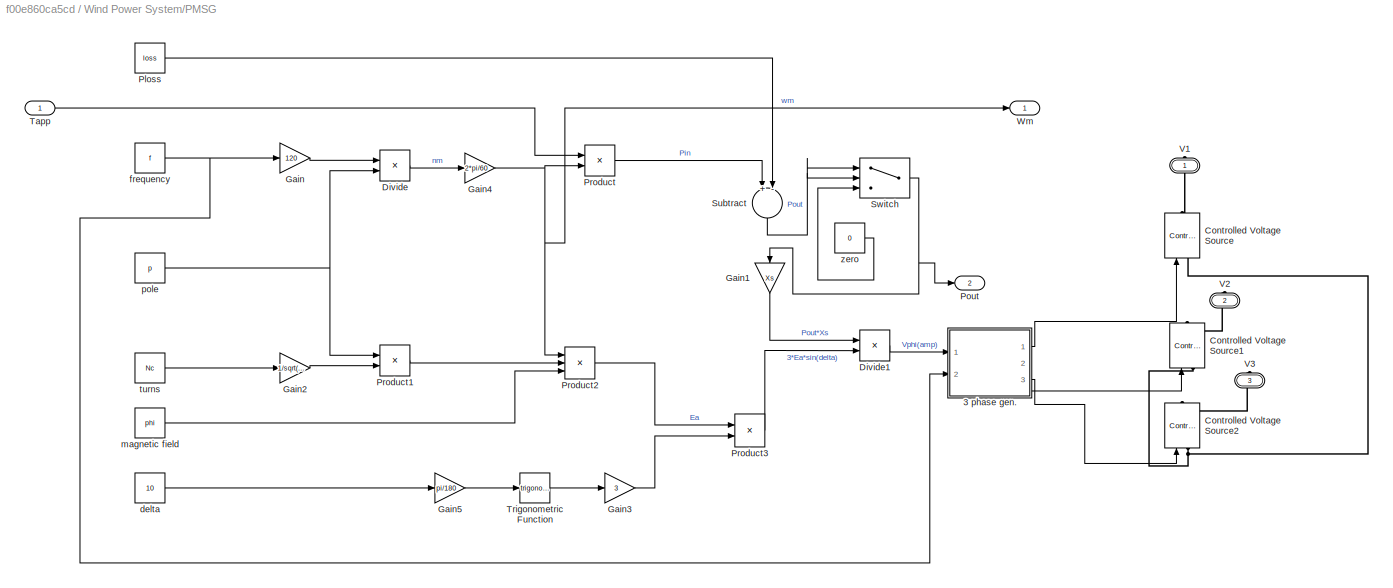
BLOCK [SubSystem] Wind Power System/PMSG
  Ports = [1, 2, 0, 0, 0, 0, 3]
  RequestExecContextInheritance = off
  Variant = off
BLOCK [SubSystem] Wind Power System/PMSG/3 phase gen.
  Ports = [2, 3]
  RequestExecContextInheritance = off
  Variant = off
BLOCK [Clock] Wind Power System/PMSG/3 phase gen./Clock
  DisplayTime = on
BLOCK [Clock] Wind Power System/PMSG/3 phase gen./Clock1
  DisplayTime = on
BLOCK [Clock] Wind Power System/PMSG/3 phase gen./Clock2
  DisplayTime = on
BLOCK [Constant] Wind Power System/PMSG/3 phase gen./Constant1
  Value = 2*pi/3
BLOCK [Constant] Wind Power System/PMSG/3 phase gen./Constant2
  Value = 4*pi/3
BLOCK [Constant] Wind Power System/PMSG/3 phase gen./Constant6
  Value = 0
BLOCK [Gain] Wind Power System/PMSG/3 phase gen./Gain1
  Gain = 2*pi
  OutDataTypeStr = Inherit: Inherit via internal rule
  ParamDataTypeStr = Inherit: Inherit via internal rule
  SaturateOnIntegerOverflow = off
BLOCK [Gain] Wind Power System/PMSG/3 phase gen./Gain2
  Gain = 2*pi
  OutDataTypeStr = Inherit: Inherit via internal rule
  ParamDataTypeStr = Inherit: Inherit via internal rule
  SaturateOnIntegerOverflow = off
BLOCK [Gain] Wind Power System/PMSG/3 phase gen./Gain6
  Gain = 2*pi
  OutDataTypeStr = Inherit: Inherit via internal rule
  ParamDataTypeStr = Inherit: Inherit via internal rule
  SaturateOnIntegerOverflow = off
BLOCK [Product] Wind Power System/PMSG/3 phase gen./Product1
  InputSameDT = off
  OutDataTypeStr = Inherit: Inherit via internal rule
  Ports = [2, 1]
  SaturateOnIntegerOverflow = off
BLOCK [Product] Wind Power System/PMSG/3 phase gen./Product2
  InputSameDT = off
  OutDataTypeStr = Inherit: Inherit via internal rule
  Ports = [2, 1]
  SaturateOnIntegerOverflow = off
BLOCK [Product] Wind Power System/PMSG/3 phase gen./Product3
  InputSameDT = off
  OutDataTypeStr = Inherit: Inherit via internal rule
  Ports = [2, 1]
  SaturateOnIntegerOverflow = off
BLOCK [Product] Wind Power System/PMSG/3 phase gen./Product4
  InputSameDT = off
  OutDataTypeStr = Inherit: Inherit via internal rule
  Ports = [2, 1]
  SaturateOnIntegerOverflow = off
BLOCK [Product] Wind Power System/PMSG/3 phase gen./Product5
  InputSameDT = off
  OutDataTypeStr = Inherit: Inherit via internal rule
  Ports = [2, 1]
  SaturateOnIntegerOverflow = off
BLOCK [Product] Wind Power System/PMSG/3 phase gen./Product6
  InputSameDT = off
  OutDataTypeStr = Inherit: Inherit via internal rule
  Ports = [2, 1]
  SaturateOnIntegerOverflow = off
BLOCK [Sum] Wind Power System/PMSG/3 phase gen./Sum
  IconShape = round
  InputSameDT = off
  Inputs = |++
  OutDataTypeStr = Inherit: Inherit via internal rule
  Ports = [2, 1]
  SaturateOnIntegerOverflow = off
BLOCK [Sum] Wind Power System/PMSG/3 phase gen./Sum1
  IconShape = round
  InputSameDT = off
  Inputs = |++
  OutDataTypeStr = Inherit: Inherit via internal rule
  Ports = [2, 1]
  SaturateOnIntegerOverflow = off
BLOCK [Sum] Wind Power System/PMSG/3 phase gen./Sum2
  IconShape = round
  InputSameDT = off
  Inputs = |++
  OutDataTypeStr = Inherit: Inherit via internal rule
  Ports = [2, 1]
  SaturateOnIntegerOverflow = off
BLOCK [Trigonometry] Wind Power System/PMSG/3 phase gen./Trigonometric Function1
  Ports = [1, 1]
BLOCK [Trigonometry] Wind Power System/PMSG/3 phase gen./Trigonometric Function2
  Ports = [1, 1]
BLOCK [Trigonometry] Wind Power System/PMSG/3 phase gen./Trigonometric Function3
  Ports = [1, 1]
BLOCK [Outport] Wind Power System/PMSG/3 phase gen./V1
  IconDisplay = Port number
BLOCK [Outport] Wind Power System/PMSG/3 phase gen./V2
  IconDisplay = Port number
  Port = 2
BLOCK [Outport] Wind Power System/PMSG/3 phase gen./V3
  IconDisplay = Port number
  Port = 3
BLOCK [Inport] Wind Power System/PMSG/3 phase gen./Vamp
  IconDisplay = Port number
BLOCK [Inport] Wind Power System/PMSG/3 phase gen./frequency
  IconDisplay = Port number
  Port = 2
BLOCK [Reference] Wind Power System/PMSG/Controlled Voltage Source  REF=powerlib/Electrical
Sources/Controlled Voltage Source
  Ports = [1, 0, 0, 0, 0, 1, 1]
  SourceBlock = powerlib/Electrical\nSources/Controlled Voltage Source
  SourceType = Controlled Voltage Source
BLOCK [Reference] Wind Power System/PMSG/Controlled Voltage Source1  REF=powerlib/Electrical
Sources/Controlled Voltage Source
  Ports = [1, 0, 0, 0, 0, 1, 1]
  SourceBlock = powerlib/Electrical\nSources/Controlled Voltage Source
  SourceType = Controlled Voltage Source
BLOCK [Reference] Wind Power System/PMSG/Controlled Voltage Source2  REF=powerlib/Electrical
Sources/Controlled Voltage Source
  Ports = [1, 0, 0, 0, 0, 1, 1]
  SourceBlock = powerlib/Electrical\nSources/Controlled Voltage Source
  SourceType = Controlled Voltage Source
BLOCK [Product] Wind Power System/PMSG/Divide
  InputSameDT = off
  Inputs = */
  OutDataTypeStr = Inherit: Inherit via internal rule
  Ports = [2, 1]
  RndMeth = Floor
  SaturateOnIntegerOverflow = off
BLOCK [Product] Wind Power System/PMSG/Divide1
  InputSameDT = off
  Inputs = */
  OutDataTypeStr = Inherit: Inherit via internal rule
  Ports = [2, 1]
  RndMeth = Floor
  SaturateOnIntegerOverflow = off
BLOCK [Gain] Wind Power System/PMSG/Gain
  Gain = 120
  OutDataTypeStr = Inherit: Inherit via internal rule
  ParamDataTypeStr = Inherit: Inherit via internal rule
  SaturateOnIntegerOverflow = off
BLOCK [Gain] Wind Power System/PMSG/Gain1
  Gain = Xs
  OutDataTypeStr = Inherit: Inherit via internal rule
  ParamDataTypeStr = Inherit: Inherit via internal rule
  SaturateOnIntegerOverflow = off
BLOCK [Gain] Wind Power System/PMSG/Gain2
  Gain = 1/sqrt(2)
  OutDataTypeStr = Inherit: Inherit via internal rule
  ParamDataTypeStr = Inherit: Inherit via internal rule
  SaturateOnIntegerOverflow = off
BLOCK [Gain] Wind Power System/PMSG/Gain3
  Gain = 3
  OutDataTypeStr = Inherit: Inherit via internal rule
  ParamDataTypeStr = Inherit: Inherit via internal rule
  SaturateOnIntegerOverflow = off
BLOCK [Gain] Wind Power System/PMSG/Gain4
  Gain = 2*pi/60
  OutDataTypeStr = Inherit: Inherit via internal rule
  ParamDataTypeStr = Inherit: Inherit via internal rule
  SaturateOnIntegerOverflow = off
BLOCK [Gain] Wind Power System/PMSG/Gain5
  Gain = pi/180
  OutDataTypeStr = Inherit: Inherit via internal rule
  ParamDataTypeStr = Inherit: Inherit via internal rule
  SaturateOnIntegerOverflow = off
BLOCK [Constant] Wind Power System/PMSG/Ploss
  Value = loss
BLOCK [Outport] Wind Power System/PMSG/Pout
  IconDisplay = Port number
  Port = 2
BLOCK [Product] Wind Power System/PMSG/Product
  InputSameDT = off
  OutDataTypeStr = Inherit: Inherit via internal rule
  Ports = [2, 1]
  SaturateOnIntegerOverflow = off
BLOCK [Product] Wind Power System/PMSG/Product1
  InputSameDT = off
  OutDataTypeStr = Inherit: Inherit via internal rule
  Ports = [2, 1]
  SaturateOnIntegerOverflow = off
BLOCK [Product] Wind Power System/PMSG/Product2
  InputSameDT = off
  Inputs = 3
  OutDataTypeStr = Inherit: Inherit via internal rule
  Ports = [3, 1]
  SaturateOnIntegerOverflow = off
BLOCK [Product] Wind Power System/PMSG/Product3
  InputSameDT = off
  OutDataTypeStr = Inherit: Inherit via internal rule
  Ports = [2, 1]
  SaturateOnIntegerOverflow = off
BLOCK [Sum] Wind Power System/PMSG/Subtract
  InputSameDT = off
  Inputs = +-
  OutDataTypeStr = Inherit: Inherit via internal rule
  Ports = [2, 1]
  SaturateOnIntegerOverflow = off
BLOCK [Switch] Wind Power System/PMSG/Switch
  Criteria = u2 > Threshold
  InputSameDT = off
  SaturateOnIntegerOverflow = off
BLOCK [Inport] Wind Power System/PMSG/Tapp
  IconDisplay = Port number
BLOCK [Trigonometry] Wind Power System/PMSG/Trigonometric Function
  Ports = [1, 1]
BLOCK [PMIOPort] Wind Power System/PMSG/V1
  Port = 1
  Side = Right
BLOCK [PMIOPort] Wind Power System/PMSG/V2
  Port = 2
  Side = Right
BLOCK [PMIOPort] Wind Power System/PMSG/V3
  Port = 3
  Side = Right
BLOCK [Outport] Wind Power System/PMSG/Wm
  IconDisplay = Port number
BLOCK [Constant] Wind Power System/PMSG/delta
  Value = 10
BLOCK [Constant] Wind Power System/PMSG/frequency
  Value = f
BLOCK [Constant] Wind Power System/PMSG/magnetic field
  Value = phi
BLOCK [Constant] Wind Power System/PMSG/pole
  Value = p
BLOCK [Constant] Wind Power System/PMSG/turns
  Value = Nc
BLOCK [Constant] Wind Power System/PMSG/zero
  Value = 0
BLOCK [Product] Wind Power System/Product
  InputSameDT = off
  OutDataTypeStr = Inherit: Inherit via internal rule
  Ports = [2, 1]
  RndMeth = Floor
  SaturateOnIntegerOverflow = off
BLOCK [Reference] Wind Power System/Resistance  REF=powerlib/Elements/Parallel RLC Branch
  AttributesFormatString = \n
  Ports = [0, 0, 0, 0, 0, 1, 1]
  SourceBlock = powerlib/Elements/Parallel RLC Branch
  SourceType = Parallel RLC Branch
BLOCK [Scope] Wind Power System/Scope
  NumInputPorts = 1
  Ports = [1]
  ScopeSpecificationString = C++SS(StrPVP('Location','[1, 49, 1367, 767]'),StrPVP('Open','off'),MxPVP('AxesTitles',24,'struct(''axes1'',''%<SignalLabel>'')'),MxPVP('ScopeGraphics',28,'struct(''FigureColor'',''[0.5 0.5 0.5]'',''AxesColor'',''[0 0 0]'',''AxesTickColor'',''[1 1 1]'',''LineColors'',''[1 1 0;1 0 1;0 1 1;1 0 0;0 1 0;0 0 1]'',''LineStyles'',''-|-|-|-|-|-'',''LineWidths'',''[0.5 0.5 0.5 0.5 0.5 0.5]'',''MarkerStyles'...<+264ch>
BLOCK [Scope] Wind Power System/Scope1
  NumInputPorts = 1
  Ports = [1]
  ScopeSpecificationString = Simulink.scopes.TimeScopeBlockCfg('CurrentConfiguration', extmgr.ConfigurationSet(extmgr.Configuration('Core','General UI',true),extmgr.Configuration('Core','Source UI',true),extmgr.Configuration('Sources','WiredSimulink',true,'DataLoggingSaveFormat','StructureWithTime','DataLoggingLimitDataPoints',true,'DataLoggingDecimation','1','DataLoggingDecimateData',true,'DataLoggingVariableName','ScopeData...<+1712ch>
BLOCK [Scope] Wind Power System/Scope2
  NumInputPorts = 1
  Ports = [1]
  ScopeSpecificationString = Simulink.scopes.TimeScopeBlockCfg('CurrentConfiguration', extmgr.ConfigurationSet(extmgr.Configuration('Core','General UI',true),extmgr.Configuration('Core','Source UI',true),extmgr.Configuration('Sources','WiredSimulink',true,'DataLoggingSaveFormat','StructureWithTime','DataLoggingLimitDataPoints',true,'DataLoggingDecimation','1','DataLoggingDecimateData',true,'DataLoggingVariableName','ScopeData...<+1699ch>
BLOCK [Display] Wind Power System/Torque
  Decimation = 1
  Ports = [1]
BLOCK [UniformRandomNumber] Wind Power System/Uniform Random Number
  Maximum = 13
  Minimum = 12
  SampleTime = 0.01
BLOCK [Reference] Wind Power System/Universal Bridge  REF=powerlib/Power
Electronics/Universal Bridge
  Ports = [0, 0, 0, 0, 0, 3, 2]
  SourceBlock = powerlib/Power\nElectronics/Universal Bridge
  SourceType = Universal Bridge
BLOCK [Reference] Wind Power System/Voltage Measurement  REF=powerlib/Measurements/Voltage Measurement
  Ports = [0, 1, 0, 0, 0, 2]
  SourceBlock = powerlib/Measurements/Voltage Measurement
  SourceType = Voltage Measurement
BLOCK [Reference] Wind Power System/Voltage Measurement1  REF=powerlib/Measurements/Voltage Measurement
  Ports = [0, 1, 0, 0, 0, 2]
  SourceBlock = powerlib/Measurements/Voltage Measurement
  SourceType = Voltage Measurement
BLOCK [SubSystem] Wind Power System/Wind Turbine
  AncestorBlock = re_lib/Wind Generation/Wind Turbine
  DialogController = POWERSYS.PowerSysDialog
  Ports = [3, 1]
  RequestExecContextInheritance = off
  Variant = off
BLOCK [Gain] Wind Power System/Wind Turbine/1//cp_nom
  Gain = 1/cp_nom
BLOCK [Gain] Wind Power System/Wind Turbine/1//wind_base
  Gain = 1/wind_base
BLOCK [Saturate] Wind Power System/Wind Turbine/Avoid division by zero
  InputPortMap = u0
  LowerLimit = 1e-6
  Ports = [1, 1]
  UpperLimit = 1e6
BLOCK [Saturate] Wind Power System/Wind Turbine/Avoid division by zero 
  InputPortMap = u0
  LowerLimit = 1e-6
  Ports = [1, 1]
  UpperLimit = 1e6
BLOCK [Constant] Wind Power System/Wind Turbine/Constant
  Value = Pelec_base
BLOCK [Display] Wind Power System/Wind Turbine/Display
  Decimation = 1
  Ports = [1]
BLOCK [Display] Wind Power System/Wind Turbine/Display1
  Decimation = 1
  Ports = [1]
BLOCK [Display] Wind Power System/Wind Turbine/Display10
  Decimation = 1
  Ports = [1]
BLOCK [Display] Wind Power System/Wind Turbine/Display2
  Decimation = 1
  Ports = [1]
BLOCK [Display] Wind Power System/Wind Turbine/Display3
  Decimation = 1
  Ports = [1]
BLOCK [Display] Wind Power System/Wind Turbine/Display4
  Decimation = 1
  Ports = [1]
BLOCK [Display] Wind Power System/Wind Turbine/Display5
  Decimation = 1
  Ports = [1]
BLOCK [Display] Wind Power System/Wind Turbine/Display6
  Decimation = 1
  Ports = [1]
BLOCK [Display] Wind Power System/Wind Turbine/Display7
  Decimation = 1
  Ports = [1]
BLOCK [Display] Wind Power System/Wind Turbine/Display8
  Decimation = 1
  Ports = [1]
BLOCK [Display] Wind Power System/Wind Turbine/Display9
  Decimation = 1
  Ports = [1]
BLOCK [Gain] Wind Power System/Wind Turbine/Gain
  Gain = -1
BLOCK [Inport] Wind Power System/Wind Turbine/Generator speed (pu)
  IconDisplay = Port number
BLOCK [Inport] Wind Power System/Wind Turbine/Pitch angle (deg)
  IconDisplay = Port number
  Port = 2
BLOCK [Product] Wind Power System/Wind Turbine/Product
  InputSameDT = off
  Inputs = /*
  Ports = [2, 1]
  RndMeth = Floor
BLOCK [Product] Wind Power System/Wind Turbine/Product 
  InputSameDT = off
  Ports = [2, 1]
  RndMeth = Floor
BLOCK [Product] Wind Power System/Wind Turbine/Product2
  Inputs = */
  Ports = [2, 1]
  RndMeth = Floor
BLOCK [Saturate] Wind Power System/Wind Turbine/Saturation1
  InputPortMap = u0
  LowerLimit = 1e-6
  Ports = [1, 1]
  UpperLimit = inf
BLOCK [Outport] Wind Power System/Wind Turbine/Tm (pu)
  IconDisplay = Port number
BLOCK [Inport] Wind Power System/Wind Turbine/Wind speed (m//s)
  IconDisplay = Port number
  Port = 3
BLOCK [SubSystem] Wind Power System/Wind Turbine/cp(lambda,beta)
  Ports = [2, 1]
  RequestExecContextInheritance = off
  Variant = off
BLOCK [Fcn] Wind Power System/Wind Turbine/cp(lambda,beta)/Fcn
  Expr = 1/(1/(u[1]+0.08*u[2])-0.035/(u[2]^3+1))
BLOCK [Fcn] Wind Power System/Wind Turbine/cp(lambda,beta)/Fcn1
  Expr = c1*(c2/u[2]-c3*u[3]-c4)*exp(-c5/u[2])+c6*u[1]
BLOCK [Mux] Wind Power System/Wind Turbine/cp(lambda,beta)/Mux
  DisplayOption = bar
  Inputs = 2
  Ports = [2, 1]
BLOCK [Mux] Wind Power System/Wind Turbine/cp(lambda,beta)/Mux1
  DisplayOption = bar
  Inputs = 3
  Ports = [3, 1]
BLOCK [Inport] Wind Power System/Wind Turbine/cp(lambda,beta)/beta
  IconDisplay = Port number
  Port = 2
BLOCK [Outport] Wind Power System/Wind Turbine/cp(lambda,beta)/cp
  IconDisplay = Port number
BLOCK [Inport] Wind Power System/Wind Turbine/cp(lambda,beta)/lambda
  IconDisplay = Port number
BLOCK [Gain] Wind Power System/Wind Turbine/lambda_nom
  Gain = lambda_nom
BLOCK [Gain] Wind Power System/Wind Turbine/pu->pu
  Gain = P_wind_base*Pnom/Pelec_base
BLOCK [Gain] Wind Power System/Wind Turbine/pu->pu 
  Gain = 1/speed_nom
BLOCK [Fcn] Wind Power System/Wind Turbine/wind_speed^3
  Expr = u(1)^3
BLOCK [Outport] Wind Power System/Wind_Generator_Power
  IconDisplay = Port number
BLOCK [Scope] X_Mer input
  DefaultConfigurationName = spbscopes.TimeScopeBlockCfg
  NumInputPorts = 3
  Ports = [3]
  ScopeSpecificationString = spbscopes.TimeScopeBlockCfg('CurrentConfiguration', extmgr.ConfigurationSet(extmgr.Configuration('Core','General UI',true),extmgr.Configuration('Core','Source UI',true),extmgr.Configuration('Sources','WiredSimulink',true,'DataLoggingVariableName','ScopeData4'),extmgr.Configuration('Visuals','Time Domain',true,'DisplayPropertyDefaults',struct('MinYLimReal','-55.6468','MaxYLimReal','55.63761','YLabe...<+1535ch>
  UserDataPersistent = on
BLOCK [Scope] X_Mer output
  DefaultConfigurationName = spbscopes.TimeScopeBlockCfg
  NumInputPorts = 3
  Ports = [3]
  ScopeSpecificationString = spbscopes.TimeScopeBlockCfg('CurrentConfiguration', extmgr.ConfigurationSet(extmgr.Configuration('Core','General UI',true),extmgr.Configuration('Core','Source UI',true),extmgr.Configuration('Sources','WiredSimulink',true,'DataLoggingVariableName','ScopeData5'),extmgr.Configuration('Visuals','Time Domain',true,'DisplayPropertyDefaults',struct('MinYLimReal','-537.37495','MaxYLimReal','537.35637','YL...<+1496ch>
  UserDataPersistent = on
BLOCK [Reference] powergui  REF=powerlib/powergui
  Ports = []
  Priority = 1
  SourceBlock = powerlib/powergui
  SourceType = PSB option menu block
ANNOTATION (root): Solar - Wind Hybrid Power System Simulation
ANNOTATION Inverter : V2 fundamental: = m*Vdc V peak = 0.8*400 = 320 V
ANNOTATION Solar Power System /Boost Converter Control (MPPT)/MPPT: MPPT Controller
ANNOTATION Solar Power System /Boost Converter Control (MPPT)/MPPT: Maximum power point tracking by incremental conductance method + Integral regulator ------------------------------------------------------------------------------------------------------------- Maximum power point is obtained when dP/dV=0 where P= V*I -> d(V*I)/dV = I + V*dI/dV = 0 -> dI/dV = -I/V The integral regulator minimizes the error (dI/dV + I/V) Regulator output = Duty cycle correction
ANNOTATION Solar Power System /PV Array: Diode characteristic Id=Isat*[exp(Vd/VT) -1] where: Id = diode cuurent (A) Vd = diode voltage (V) Isat = diode saturation current (A) VT = temperature voltage = k*T/q*Qd*Ncell*Nser T = cell temperature (K), k = Boltzman constant = 1.3806e-23 J.K^-1 q = electron charge = 1.6022e-19 C Qd = diode quality factor Ncell= number of series-connected cells per module Nser = number of series-connected modul...<+13ch>
ANNOTATION Solar Power System /PV Array/Diode: Id=Isat*[exp(Vd/Vt)-1]
LINE Inverter /Demux1:1 -> Inverter /Goto2:1
LINE Inverter /Demux1:2 -> Inverter /Goto3:1
LINE Inverter /Demux1:3 -> Inverter /Goto4:1
LINE Inverter /Demux1:4 -> Inverter /Goto5:1
LINE Inverter /From2:1 -> Inverter /IGBT1_2:1
LINE Inverter /From3:1 -> Inverter /IGBT2_2:1
LINE Inverter /From4:1 -> Inverter /IGBT2_3:1
LINE Inverter /From5:1 -> Inverter /IGBT2_4:1
LINE Inverter /PWM Generator (4-pulses):1 -> Inverter /Demux1:1
LINE Inverter /V2:1 -> Inverter /V:1
LINE Inverter :1 -> Transformer :1
LINE Solar Power System /Boost Converter Control (MPPT)/Add:1 -> Solar Power System /Boost Converter Control (MPPT)/Saturation:1
LINE Solar Power System /Boost Converter Control (MPPT)/Enable:1 -> Solar Power System /Boost Converter Control (MPPT)/MPPT:3
LINE Solar Power System /Boost Converter Control (MPPT)/I_PV:1 -> Solar Power System /Boost Converter Control (MPPT)/MPPT:2
LINE Solar Power System /Boost Converter Control (MPPT)/Initial Duty Cycle:1 -> Solar Power System /Boost Converter Control (MPPT)/Add:1
LINE Solar Power System /Boost Converter Control (MPPT)/MPPT/Add1:1 -> Solar Power System /Boost Converter Control (MPPT)/MPPT/Switch:1
LINE Solar Power System /Boost Converter Control (MPPT)/MPPT/Add2:1 -> Solar Power System /Boost Converter Control (MPPT)/MPPT/div1:1
NET Solar Power System /Boost Converter Control (MPPT)/MPPT/Add3:1 -> Solar Power System /Boost Converter Control (MPPT)/MPPT/Compare To Zero:1, Solar Power System /Boost Converter Control (MPPT)/MPPT/Switch2:1
LINE Solar Power System /Boost Converter Control (MPPT)/MPPT/Compare To Zero:1 -> Solar Power System /Boost Converter Control (MPPT)/MPPT/Switch2:2
LINE Solar Power System /Boost Converter Control (MPPT)/MPPT/Constant1:1 -> Solar Power System /Boost Converter Control (MPPT)/MPPT/Switch1:3
LINE Solar Power System /Boost Converter Control (MPPT)/MPPT/Constant2:1 -> Solar Power System /Boost Converter Control (MPPT)/MPPT/Switch2:3
LINE Solar Power System /Boost Converter Control (MPPT)/MPPT/Constant:1 -> Solar Power System /Boost Converter Control (MPPT)/MPPT/Switch:3
LINE Solar Power System /Boost Converter Control (MPPT)/MPPT/Dead Zone:1 -> Solar Power System /Boost Converter Control (MPPT)/MPPT/Ki Gain:1
LINE Solar Power System /Boost Converter Control (MPPT)/MPPT/Discrete-Time Integrator:1 -> Solar Power System /Boost Converter Control (MPPT)/MPPT/Switch1:1
NET Solar Power System /Boost Converter Control (MPPT)/MPPT/I_PV:1 -> Solar Power System /Boost Converter Control (MPPT)/MPPT/Add2:1, Solar Power System /Boost Converter Control (MPPT)/MPPT/Unit Delay2:1, Solar Power System /Boost Converter Control (MPPT)/MPPT/div2:1
LINE Solar Power System /Boost Converter Control (MPPT)/MPPT/Ki Gain:1 -> Solar Power System /Boost Converter Control (MPPT)/MPPT/Discrete-Time Integrator:1
LINE Solar Power System /Boost Converter Control (MPPT)/MPPT/Saturation:1 -> Solar Power System /Boost Converter Control (MPPT)/MPPT/div2:2
LINE Solar Power System /Boost Converter Control (MPPT)/MPPT/Switch1:1 -> Solar Power System /Boost Converter Control (MPPT)/MPPT/Delta_D:1
LINE Solar Power System /Boost Converter Control (MPPT)/MPPT/Switch2:1 -> Solar Power System /Boost Converter Control (MPPT)/MPPT/div1:2
LINE Solar Power System /Boost Converter Control (MPPT)/MPPT/Switch:1 -> Solar Power System /Boost Converter Control (MPPT)/MPPT/Dead Zone:1
LINE Solar Power System /Boost Converter Control (MPPT)/MPPT/Unit Delay1:1 -> Solar Power System /Boost Converter Control (MPPT)/MPPT/Add3:2
LINE Solar Power System /Boost Converter Control (MPPT)/MPPT/Unit Delay2:1 -> Solar Power System /Boost Converter Control (MPPT)/MPPT/Add2:2
NET Solar Power System /Boost Converter Control (MPPT)/MPPT/V_PV:1 -> Solar Power System /Boost Converter Control (MPPT)/MPPT/Add3:1, Solar Power System /Boost Converter Control (MPPT)/MPPT/Saturation:1, Solar Power System /Boost Converter Control (MPPT)/MPPT/Unit Delay1:1
LINE Solar Power System /Boost Converter Control (MPPT)/MPPT/div1:1 -> Solar Power System /Boost Converter Control (MPPT)/MPPT/Add1:1
LINE Solar Power System /Boost Converter Control (MPPT)/MPPT/div2:1 -> Solar Power System /Boost Converter Control (MPPT)/MPPT/Add1:2
NET Solar Power System /Boost Converter Control (MPPT)/MPPT/on//off:1 -> Solar Power System /Boost Converter Control (MPPT)/MPPT/Switch1:2, Solar Power System /Boost Converter Control (MPPT)/MPPT/Switch:2
LINE Solar Power System /Boost Converter Control (MPPT)/MPPT:1 -> Solar Power System /Boost Converter Control (MPPT)/Add:2
LINE Solar Power System /Boost Converter Control (MPPT)/Pulse Generator/D:1 -> Solar Power System /Boost Converter Control (MPPT)/Pulse Generator/Relational Operator:2
LINE Solar Power System /Boost Converter Control (MPPT)/Pulse Generator/Relational Operator:1 -> Solar Power System /Boost Converter Control (MPPT)/Pulse Generator/Pulses:1
LINE Solar Power System /Boost Converter Control (MPPT)/Pulse Generator/Repeating Sequence:1 -> Solar Power System /Boost Converter Control (MPPT)/Pulse Generator/Relational Operator:1
LINE Solar Power System /Boost Converter Control (MPPT)/Pulse Generator:1 -> Solar Power System /Boost Converter Control (MPPT)/Pulses:1
NET Solar Power System /Boost Converter Control (MPPT)/Saturation:1 -> Solar Power System /Boost Converter Control (MPPT)/Goto7:1, Solar Power System /Boost Converter Control (MPPT)/Pulse Generator:1
LINE Solar Power System /Boost Converter Control (MPPT)/V_PV:1 -> Solar Power System /Boost Converter Control (MPPT)/MPPT:1
LINE Solar Power System /Boost Converter Control (MPPT):1 -> Solar Power System /Product2:2
LINE Solar Power System /Deblock Converters:1 -> Solar Power System /Product2:1
NET Solar Power System /Discrete Mean value:1 -> Solar Power System /Power_PV:1, Solar Power System /WkW:1
LINE Solar Power System /Enable MPPT:1 -> Solar Power System /Boost Converter Control (MPPT):3
LINE Solar Power System /From1:1 -> Solar Power System /Boost Converter Control (MPPT):2
LINE Solar Power System /From2:1 -> Solar Power System /Boost Converter Control (MPPT):1
LINE Solar Power System /From3:1 -> Solar Power System /Boost:4
LINE Solar Power System /From4:1 -> Solar Power System /Boost:3
NET Solar Power System /From7:1 -> Solar Power System /Boost:2, Solar Power System /Product:1, Solar Power System /Vdc Boost:1
LINE Solar Power System /From8:1 -> Solar Power System /Product:2
LINE Solar Power System /IGBT:1 -> Solar Power System /Display2:1
NET Solar Power System /Irradiance (W//m2) :1 -> Solar Power System /Irradiance (W//m^2):1, Solar Power System /PV Array:1
LINE Solar Power System /PV Array/Add:1 -> Solar Power System /PV Array/Bus Creator:1
LINE Solar Power System /PV Array/Bus Creator:1 -> Solar Power System /PV Array/m:1
LINE Solar Power System /PV Array/Diode/Add:1 -> Solar Power System /PV Array/Diode/Product:2
LINE Solar Power System /PV Array/Diode/Is:1 -> Solar Power System /PV Array/Diode/Product:1
LINE Solar Power System /PV Array/Diode/Math Function:1 -> Solar Power System /PV Array/Diode/Add:1
LINE Solar Power System /PV Array/Diode/Product1:1 -> Solar Power System /PV Array/Diode/Math Function:1
NET Solar Power System /PV Array/Diode/Product:1 -> Solar Power System /PV Array/Diode/Id:1, Solar Power System /PV Array/Diode/Idiode:1
LINE Solar Power System /PV Array/Diode/Unit Delay:1 -> Solar Power System /PV Array/Diode/Product1:1
LINE Solar Power System /PV Array/Diode/VT:1 -> Solar Power System /PV Array/Diode/Product1:2
NET Solar Power System /PV Array/Diode/Vd:1 -> Solar Power System /PV Array/Diode/Unit Delay:1, Solar Power System /PV Array/Diode/Vdiode:1
LINE Solar Power System /PV Array/Diode/one:1 -> Solar Power System /PV Array/Diode/Add:2
LINE Solar Power System /PV Array/Diode:1 -> Solar Power System /PV Array/Add:1
LINE Solar Power System /PV Array/Diode:2 -> Solar Power System /PV Array/Bus Creator:3
NET Solar Power System /PV Array/I_PV:1 -> Solar Power System /PV Array/Bus Creator:2, Solar Power System /PV Array/Rs_:1
LINE Solar Power System /PV Array/Iph_:1 -> Solar Power System /PV Array/Product1:1
NET Solar Power System /PV Array/Ir:1 -> Solar Power System /PV Array/Bus Creator:4, Solar Power System /PV Array/t0_kW:1
LINE Solar Power System /PV Array/Product1:1 -> Solar Power System /PV Array/Iph:1
LINE Solar Power System /PV Array/Rs_:1 -> Solar Power System /PV Array/Add:2
LINE Solar Power System /PV Array/t0_kW:1 -> Solar Power System /PV Array/Product1:2
LINE Solar Power System /PV Array:1 -> Solar Power System /Goto2:1
LINE Solar Power System /Product2:1 -> Solar Power System /IGBT:1
LINE Solar Power System /Product:1 -> Solar Power System /Discrete Mean value:1
NET Solar Power System /Saturation:1 -> Solar Power System /Controlled Voltage Source:1, Solar Power System /Display3:1
LINE Solar Power System /Subsystem1/Bus Selector:1 -> Solar Power System /Subsystem1/Goto3:1
LINE Solar Power System /Subsystem1/Bus Selector:2 -> Solar Power System /Subsystem1/Goto4:1
LINE Solar Power System /Subsystem1/Bus Selector:3 -> Solar Power System /Subsystem1/Goto6:1
LINE Solar Power System /Subsystem1/Bus Selector:4 -> Solar Power System /Subsystem1/Goto8:1
LINE Solar Power System /Subsystem1/From13:1 -> Solar Power System /Subsystem1/PV:3
LINE Solar Power System /Subsystem1/From1:1 -> Solar Power System /Subsystem1/Bus Selector:1
LINE Solar Power System /Subsystem1/From8:1 -> Solar Power System /Subsystem1/PV:2
LINE Solar Power System /Subsystem1/From9:1 -> Solar Power System /Subsystem1/PV:1
LINE Solar Power System /VM:1 -> Solar Power System /Display1:1
LINE Solar Power System /Voltage Measurement:1 -> Solar Power System /Saturation:1
NET Solar Power System /WkW:1 -> Solar Power System /Boost:1, Solar Power System /P (kW) :1
LINE Solar Power System :1 -> Sum:2
LINE Sum:1 -> Scope1:1
NET Transformer /Single phase in :1 -> Transformer /Controlled Voltage Source:1, Transformer /Transport Delay1:1, Transformer /Transport Delay2:1
LINE Transformer /Transport Delay1:1 -> Transformer /Controlled Voltage Source2:1
LINE Transformer /Transport Delay2:1 -> Transformer /Controlled Voltage Source1:1
LINE Transformer /Voltage Measurement1:1 -> Transformer /X_Mer in 1:1
LINE Transformer /Voltage Measurement2:1 -> Transformer /X_Mer in 2:1
LINE Transformer /Voltage Measurement3:1 -> Transformer /X_Mer out 1:1
LINE Transformer /Voltage Measurement4:1 -> Transformer /X_Mer out 2:1
LINE Transformer /Voltage Measurement5:1 -> Transformer /X_Mer out 3:1
LINE Transformer /Voltage Measurement6:1 -> Transformer /X_Mer in 3 :1
LINE Transformer :1 -> X_Mer output:1
LINE Transformer :2 -> X_Mer output:2
LINE Transformer :3 -> X_Mer output:3
LINE Transformer :4 -> X_Mer input:1
LINE Transformer :5 -> X_Mer input:2
LINE Transformer :6 -> X_Mer input:3
LINE Voltage Measurement:1 -> Scope:1
LINE Wind Power System/Base Torque/Base Power:1 -> Wind Power System/Base Torque/Divide:1
LINE Wind Power System/Base Torque/Base speed(rad//s):1 -> Wind Power System/Base Torque/Divide:2
LINE Wind Power System/Base Torque/Divide:1 -> Wind Power System/Base Torque/Out:1
LINE Wind Power System/Base Torque:1 -> Wind Power System/Product:2
LINE Wind Power System/Constant1:1 -> Wind Power System/Wind Turbine:2
LINE Wind Power System/DC-DC_Boost/Constant2:1 -> Wind Power System/DC-DC_Boost/PWM Generator (DC-DC):1
LINE Wind Power System/DC-DC_Boost/PWM Generator (DC-DC):1 -> Wind Power System/DC-DC_Boost/Mosfet:1
LINE Wind Power System/DC-DC_Boost/Saturation:1 -> Wind Power System/DC-DC_Boost/Controlled Voltage Source:1
LINE Wind Power System/DC-DC_Boost/Voltage Measurement1:1 -> Wind Power System/DC-DC_Boost/Saturation:1
LINE Wind Power System/Decision Block/Switch1:1 -> Wind Power System/Decision Block/Torque_out:1
LINE Wind Power System/Decision Block/Switch:1 -> Wind Power System/Decision Block/Switch1:3
NET Wind Power System/Decision Block/Turbine_torque:1 -> Wind Power System/Decision Block/Switch:1, Wind Power System/Decision Block/Switch:2
LINE Wind Power System/Decision Block/Wind Speed:1 -> Wind Power System/Decision Block/Switch1:2
NET Wind Power System/Decision Block/zero:1 -> Wind Power System/Decision Block/Switch1:1, Wind Power System/Decision Block/Switch:3
NET Wind Power System/Decision Block:1 -> Wind Power System/PMSG:1, Wind Power System/Torque:1
LINE Wind Power System/Gain1:1 -> Wind Power System/Decision Block:1
LINE Wind Power System/Gain:1 -> Wind Power System/Wind Turbine:1
LINE Wind Power System/PMSG/3 phase gen./Clock1:1 -> Wind Power System/PMSG/3 phase gen./Product1:2
LINE Wind Power System/PMSG/3 phase gen./Clock2:1 -> Wind Power System/PMSG/3 phase gen./Product3:2
LINE Wind Power System/PMSG/3 phase gen./Clock:1 -> Wind Power System/PMSG/3 phase gen./Product4:2
LINE Wind Power System/PMSG/3 phase gen./Constant1:1 -> Wind Power System/PMSG/3 phase gen./Sum1:2
LINE Wind Power System/PMSG/3 phase gen./Constant2:1 -> Wind Power System/PMSG/3 phase gen./Sum2:2
LINE Wind Power System/PMSG/3 phase gen./Constant6:1 -> Wind Power System/PMSG/3 phase gen./Sum:2
LINE Wind Power System/PMSG/3 phase gen./Gain1:1 -> Wind Power System/PMSG/3 phase gen./Product1:1
LINE Wind Power System/PMSG/3 phase gen./Gain2:1 -> Wind Power System/PMSG/3 phase gen./Product3:1
LINE Wind Power System/PMSG/3 phase gen./Gain6:1 -> Wind Power System/PMSG/3 phase gen./Product4:1
LINE Wind Power System/PMSG/3 phase gen./Product1:1 -> Wind Power System/PMSG/3 phase gen./Sum1:1
LINE Wind Power System/PMSG/3 phase gen./Product2:1 -> Wind Power System/PMSG/3 phase gen./V2:1
LINE Wind Power System/PMSG/3 phase gen./Product3:1 -> Wind Power System/PMSG/3 phase gen./Sum2:1
LINE Wind Power System/PMSG/3 phase gen./Product4:1 -> Wind Power System/PMSG/3 phase gen./Sum:1
LINE Wind Power System/PMSG/3 phase gen./Product5:1 -> Wind Power System/PMSG/3 phase gen./V1:1
LINE Wind Power System/PMSG/3 phase gen./Product6:1 -> Wind Power System/PMSG/3 phase gen./V3:1
LINE Wind Power System/PMSG/3 phase gen./Sum1:1 -> Wind Power System/PMSG/3 phase gen./Trigonometric Function2:1
LINE Wind Power System/PMSG/3 phase gen./Sum2:1 -> Wind Power System/PMSG/3 phase gen./Trigonometric Function3:1
LINE Wind Power System/PMSG/3 phase gen./Sum:1 -> Wind Power System/PMSG/3 phase gen./Trigonometric Function1:1
LINE Wind Power System/PMSG/3 phase gen./Trigonometric Function1:1 -> Wind Power System/PMSG/3 phase gen./Product5:2
LINE Wind Power System/PMSG/3 phase gen./Trigonometric Function2:1 -> Wind Power System/PMSG/3 phase gen./Product2:2
LINE Wind Power System/PMSG/3 phase gen./Trigonometric Function3:1 -> Wind Power System/PMSG/3 phase gen./Product6:2
NET Wind Power System/PMSG/3 phase gen./Vamp:1 -> Wind Power System/PMSG/3 phase gen./Product2:1, Wind Power System/PMSG/3 phase gen./Product5:1, Wind Power System/PMSG/3 phase gen./Product6:1
NET Wind Power System/PMSG/3 phase gen./frequency:1 -> Wind Power System/PMSG/3 phase gen./Gain1:1, Wind Power System/PMSG/3 phase gen./Gain2:1, Wind Power System/PMSG/3 phase gen./Gain6:1
LINE Wind Power System/PMSG/3 phase gen.:1 -> Wind Power System/PMSG/Controlled Voltage Source:1
LINE Wind Power System/PMSG/3 phase gen.:2 -> Wind Power System/PMSG/Controlled Voltage Source1:1
LINE Wind Power System/PMSG/3 phase gen.:3 -> Wind Power System/PMSG/Controlled Voltage Source2:1
LINE Wind Power System/PMSG/Divide1:1 -> Wind Power System/PMSG/3 phase gen.:1
LINE Wind Power System/PMSG/Divide:1 -> Wind Power System/PMSG/Gain4:1
LINE Wind Power System/PMSG/Gain1:1 -> Wind Power System/PMSG/Divide1:1
LINE Wind Power System/PMSG/Gain2:1 -> Wind Power System/PMSG/Product1:2
LINE Wind Power System/PMSG/Gain3:1 -> Wind Power System/PMSG/Product3:2
NET Wind Power System/PMSG/Gain4:1 -> Wind Power System/PMSG/Product2:1, Wind Power System/PMSG/Product:2, Wind Power System/PMSG/Wm:1
LINE Wind Power System/PMSG/Gain5:1 -> Wind Power System/PMSG/Trigonometric Function:1
LINE Wind Power System/PMSG/Gain:1 -> Wind Power System/PMSG/Divide:1
LINE Wind Power System/PMSG/Ploss:1 -> Wind Power System/PMSG/Subtract:2
LINE Wind Power System/PMSG/Product1:1 -> Wind Power System/PMSG/Product2:2
LINE Wind Power System/PMSG/Product2:1 -> Wind Power System/PMSG/Product3:1
LINE Wind Power System/PMSG/Product3:1 -> Wind Power System/PMSG/Divide1:2
LINE Wind Power System/PMSG/Product:1 -> Wind Power System/PMSG/Subtract:1
NET Wind Power System/PMSG/Subtract:1 -> Wind Power System/PMSG/Switch:1, Wind Power System/PMSG/Switch:2
NET Wind Power System/PMSG/Switch:1 -> Wind Power System/PMSG/Gain1:1, Wind Power System/PMSG/Pout:1
LINE Wind Power System/PMSG/Tapp:1 -> Wind Power System/PMSG/Product:1
LINE Wind Power System/PMSG/Trigonometric Function:1 -> Wind Power System/PMSG/Gain3:1
LINE Wind Power System/PMSG/delta:1 -> Wind Power System/PMSG/Gain5:1
NET Wind Power System/PMSG/frequency:1 -> Wind Power System/PMSG/3 phase gen.:2, Wind Power System/PMSG/Gain:1
LINE Wind Power System/PMSG/magnetic field:1 -> Wind Power System/PMSG/Product2:3
NET Wind Power System/PMSG/pole:1 -> Wind Power System/PMSG/Divide:2, Wind Power System/PMSG/Product1:1
LINE Wind Power System/PMSG/turns:1 -> Wind Power System/PMSG/Gain2:1
LINE Wind Power System/PMSG/zero:1 -> Wind Power System/PMSG/Switch:3
LINE Wind Power System/PMSG:1 -> Wind Power System/Gain:1
NET Wind Power System/PMSG:2 -> Wind Power System/Scope2:1, Wind Power System/Wind_Generator_Power:1
LINE Wind Power System/Product:1 -> Wind Power System/Gain1:1
NET Wind Power System/Uniform Random Number:1 -> Wind Power System/Decision Block:2, Wind Power System/Wind Turbine:3
LINE Wind Power System/Voltage Measurement1:1 -> Wind Power System/Scope1:1
NET Wind Power System/Voltage Measurement:1 -> Wind Power System/Display:1, Wind Power System/Scope:1
LINE Wind Power System/Wind Turbine:1 -> Wind Power System/Product:1
LINE Wind Power System:1 -> Sum:1
PLINE Diode1:LConn1 -- Solar Power System :RConn1
PNET net1: Diode1:RConn1 -- Diode:RConn1 -- Inverter :LConn1 -- Voltage Measurement:LConn1
PLINE Diode:LConn1 -- Wind Power System:RConn1
PNET net2: Inverter /+V:RConn1 -- Inverter /IGBT1_2:LConn1 -- Inverter /IGBT2_3:LConn1
PNET net3: Inverter /-V :RConn1 -- Inverter /IGBT2_2:RConn1 -- Inverter /IGBT2_4:RConn1
PLINE Inverter /1 ohm 5 mH :LConn1 -- Inverter /I2:RConn1
PNET net4: Inverter /1 ohm 5 mH :RConn1 -- Inverter /Series RLC Branch:LConn1 -- Inverter /V2:LConn1
PNET net5: Inverter /Ground2:LConn1 -- Inverter /IGBT1_2:RConn1 -- Inverter /IGBT2_2:LConn1
PNET net6: Inverter /I2:LConn1 -- Inverter /IGBT2_3:RConn1 -- Inverter /IGBT2_4:LConn1
PLINE Inverter /Series RLC Branch:RConn1 -- Inverter /output Ground1:LConn1
PLINE Inverter /V2:LConn2 -- Inverter /output Ground2:LConn1
PNET net7: Inverter :LConn2 -- Solar Power System :RConn2 -- Voltage Measurement:LConn2 -- Wind Power System:RConn2
PLINE Solar Power System /+V:RConn1 -- Solar Power System /Controlled Voltage Source:RConn1
PLINE Solar Power System /-V:RConn1 -- Solar Power System /Controlled Voltage Source:LConn1
PNET net8: Solar Power System /C3:LConn1 -- Solar Power System /L1:LConn1 -- Solar Power System /PV Array:RConn1 -- Solar Power System /VM:LConn1
PNET net9: Solar Power System /C3:RConn1 -- Solar Power System /IGBT:RConn1 -- Solar Power System /PV Array:RConn2 -- Solar Power System /Parallel RLC Branch:RConn1 -- Solar Power System /VM:LConn2 -- Solar Power System /Voltage Measurement:LConn2
PNET net10: Solar Power System /Diode1:LConn1 -- Solar Power System /IGBT:LConn1 -- Solar Power System /L1:RConn1
PNET net11: Solar Power System /Diode1:RConn1 -- Solar Power System /Parallel RLC Branch:LConn1 -- Solar Power System /Voltage Measurement:LConn1
PLINE Solar Power System /PV Array/+:RConn1 -- Solar Power System /PV Array/I_PV:RConn1
PNET net12: Solar Power System /PV Array/-:RConn1 -- Solar Power System /PV Array/Diode:RConn1 -- Solar Power System /PV Array/Iph:LConn1 -- Solar Power System /PV Array/Rp:RConn1
PNET net13: Solar Power System /PV Array/Diode/A:RConn1 -- Solar Power System /PV Array/Diode/Id:LConn1 -- Solar Power System /PV Array/Diode/Vd:LConn1
PNET net14: Solar Power System /PV Array/Diode/Id:RConn1 -- Solar Power System /PV Array/Diode/K:RConn1 -- Solar Power System /PV Array/Diode/Vd:LConn2
PNET net15: Solar Power System /PV Array/Diode:LConn1 -- Solar Power System /PV Array/Iph:RConn1 -- Solar Power System /PV Array/Rp:LConn1 -- Solar Power System /PV Array/Rs:RConn1
PLINE Solar Power System /PV Array/I_PV:LConn1 -- Solar Power System /PV Array/Rs:LConn1
PNET net16: Transformer /Controlled Voltage Source1:LConn1 -- Transformer /Controlled Voltage Source2:LConn1 -- Transformer /Controlled Voltage Source:LConn1
PNET net17: Transformer /Controlled Voltage Source1:RConn1 -- Transformer /Three-Phase Transformer (Two Windings):LConn2 -- Transformer /Voltage Measurement2:LConn1
PNET net18: Transformer /Controlled Voltage Source2:RConn1 -- Transformer /Three-Phase Transformer (Two Windings):LConn3 -- Transformer /Voltage Measurement6:LConn1
PNET net19: Transformer /Controlled Voltage Source:RConn1 -- Transformer /Three-Phase Transformer (Two Windings):LConn1 -- Transformer /Voltage Measurement1:LConn1
PLINE Transformer /Three-Phase Transformer (Two Windings):RConn1 -- Transformer /Voltage Measurement3:LConn1
PLINE Transformer /Three-Phase Transformer (Two Windings):RConn2 -- Transformer /Voltage Measurement4:LConn1
PLINE Transformer /Three-Phase Transformer (Two Windings):RConn3 -- Transformer /Voltage Measurement5:LConn1
PNET net20: Transformer /Voltage Measurement1:LConn2 -- Transformer /Voltage Measurement2:LConn2 -- Transformer /Voltage Measurement6:LConn2 -- Transformer /output Ground2:LConn1
PNET net21: Transformer /Voltage Measurement3:LConn2 -- Transformer /Voltage Measurement4:LConn2 -- Transformer /Voltage Measurement5:LConn2 -- Transformer /output Ground1:LConn1
PNET net22: Wind Power System/+V:RConn1 -- Wind Power System/DC-DC_Boost:RConn1 -- Wind Power System/Voltage Measurement:LConn1
PNET net23: Wind Power System/-V:RConn1 -- Wind Power System/DC-DC_Boost:RConn2 -- Wind Power System/Voltage Measurement:LConn2
PNET net24: Wind Power System/Capacitor:LConn1 -- Wind Power System/DC-DC_Boost:LConn2 -- Wind Power System/Resistance:LConn1 -- Wind Power System/Universal Bridge:RConn1
PNET net25: Wind Power System/Capacitor:RConn1 -- Wind Power System/DC-DC_Boost:LConn1 -- Wind Power System/Resistance:RConn1 -- Wind Power System/Universal Bridge:RConn2
PLINE Wind Power System/DC-DC_Boost/+In:RConn1 -- Wind Power System/DC-DC_Boost/Inductor:LConn1
PLINE Wind Power System/DC-DC_Boost/+V:RConn1 -- Wind Power System/DC-DC_Boost/Controlled Voltage Source:RConn1
PNET net26: Wind Power System/DC-DC_Boost/-In:RConn1 -- Wind Power System/DC-DC_Boost/Capacitor:RConn1 -- Wind Power System/DC-DC_Boost/Mosfet:RConn1 -- Wind Power System/DC-DC_Boost/Voltage Measurement1:LConn2
PLINE Wind Power System/DC-DC_Boost/-V:RConn1 -- Wind Power System/DC-DC_Boost/Controlled Voltage Source:LConn1
PNET net27: Wind Power System/DC-DC_Boost/Capacitor:LConn1 -- Wind Power System/DC-DC_Boost/Diode:RConn1 -- Wind Power System/DC-DC_Boost/Voltage Measurement1:LConn1
PNET net28: Wind Power System/DC-DC_Boost/Diode:LConn1 -- Wind Power System/DC-DC_Boost/Inductor:RConn1 -- Wind Power System/DC-DC_Boost/Mosfet:LConn1
PNET net29: Wind Power System/PMSG/Controlled Voltage Source1:LConn1 -- Wind Power System/PMSG/Controlled Voltage Source2:LConn1 -- Wind Power System/PMSG/Controlled Voltage Source:LConn1
PLINE Wind Power System/PMSG/Controlled Voltage Source1:RConn1 -- Wind Power System/PMSG/V2:RConn1
PLINE Wind Power System/PMSG/Controlled Voltage Source2:RConn1 -- Wind Power System/PMSG/V3:RConn1
PLINE Wind Power System/PMSG/Controlled Voltage Source:RConn1 -- Wind Power System/PMSG/V1:RConn1
PNET net30: Wind Power System/PMSG:RConn1 -- Wind Power System/Universal Bridge:LConn1 -- Wind Power System/Voltage Measurement1:LConn1
PNET net31: Wind Power System/PMSG:RConn2 -- Wind Power System/Universal Bridge:LConn2 -- Wind Power System/Voltage Measurement1:LConn2
PLINE Wind Power System/PMSG:RConn3 -- Wind Power System/Universal Bridge:LConn3
note: NET lines group one-source signal fan-out (src -> all destinations, sorted); 1:1 wires keep LINE; PNET lines group multi-terminal physical nets as a canonical sorted terminal list (undirected conserving connections); 2-terminal nets keep the pairwise PLINE form
